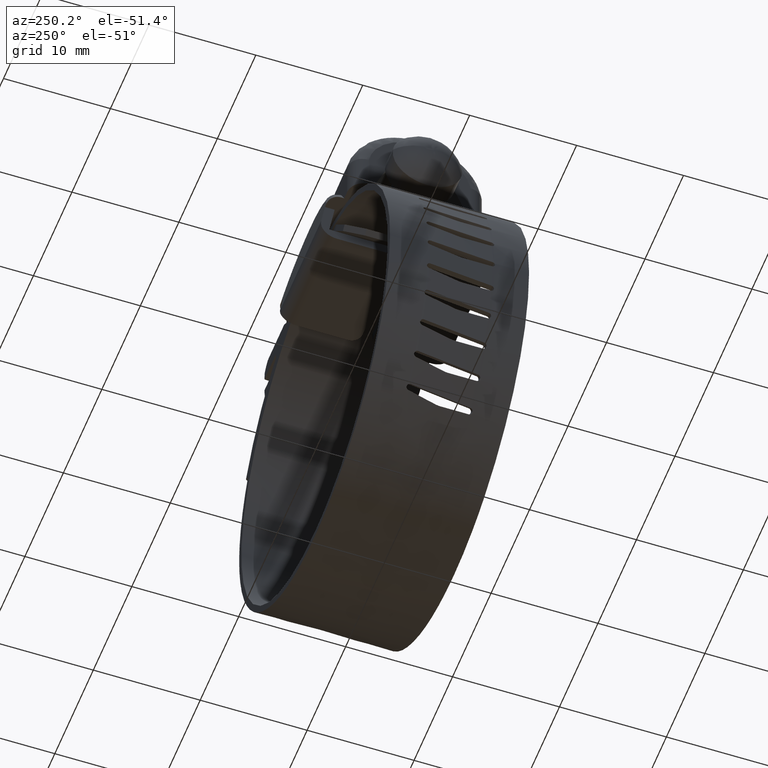
[diagram: clean part render]
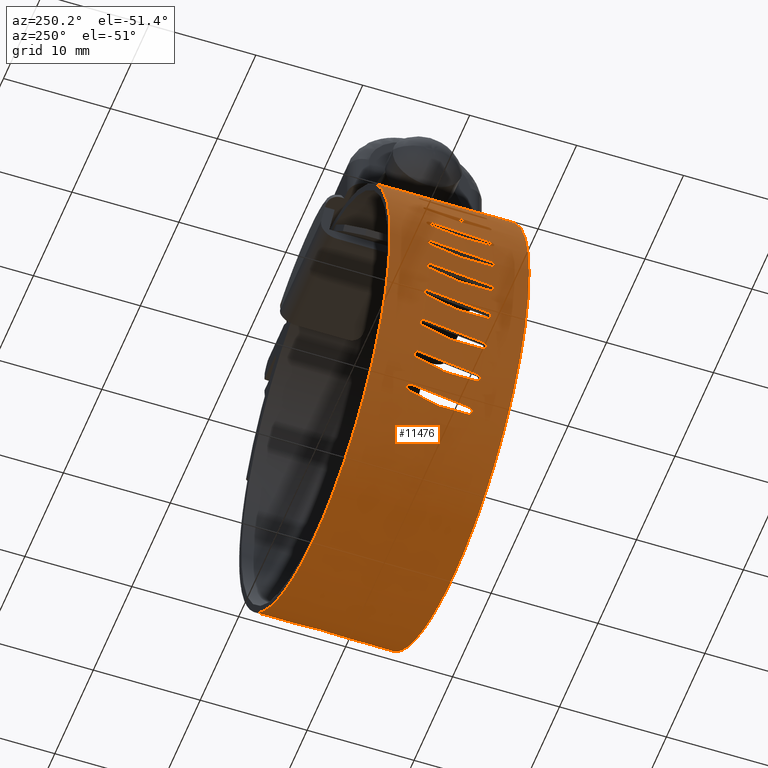
[diagram: same view with one face highlighted and labeled with its STEP entity id]
A machine part, auxiliary view. The second image highlights one B-rep face of the part: STEP entity #11476.
In plain terms, the highlighted face is a freeform B-spline surface patch.
Its self-contained STEP definition (entity closure, byte-faithful):
#5384=CARTESIAN_POINT('',(-14.348489579285481,2.620609246139980,-20.276185094325601));
#5385=VERTEX_POINT('',#5384);
#5386=CARTESIAN_POINT('',(-14.168654575181060,2.981424034894570,-20.466866296657951));
#5387=VERTEX_POINT('',#5386);
#5388=CARTESIAN_POINT('',(-14.348489579285481,2.620609246139980,-20.276185094325601));
#5389=CARTESIAN_POINT('',(-14.355584238388341,2.666710140467917,-20.269282357369889));
#5390=CARTESIAN_POINT('',(-14.354290196071760,2.758163587238288,-20.271567259671070));
#5391=CARTESIAN_POINT('',(-14.312830629217270,2.877454652797443,-20.315898264811889));
#5392=CARTESIAN_POINT('',(-14.246884683555550,2.954886687062797,-20.385257769378299));
#5393=CARTESIAN_POINT('',(-14.193909424226430,2.977612451370960,-20.440569651758381));
#5394=CARTESIAN_POINT('',(-14.168654575181060,2.981424034894570,-20.466866296657951));
#5395=B_SPLINE_CURVE_WITH_KNOTS('',3,(#5388,#5389,#5390,#5391,#5392,#5393,#5394),.UNSPECIFIED.,.F.,.U.,(4,1,1,1,4),(0.000000099247182,0.141412336252286,0.267110051199934,0.392811588082618,0.502798602907644),.UNSPECIFIED.);
#5396=EDGE_CURVE('',#5385,#5387,#5395,.T.);
#5398=CARTESIAN_POINT('',(-13.937608024552540,2.683075000000000,-20.704532738393102));
#5399=VERTEX_POINT('',#5398);
#5400=CARTESIAN_POINT('',(-14.168654575181060,2.981424034894570,-20.466866296657951));
#5401=CARTESIAN_POINT('',(-14.143434722520080,2.985285004596138,-20.493189964172728));
#5402=CARTESIAN_POINT('',(-14.088263831729540,2.978999517768661,-20.550621385786311));
#5403=CARTESIAN_POINT('',(-14.012004487758441,2.923185613685759,-20.629512136996372));
#5404=CARTESIAN_POINT('',(-13.953160899243830,2.819145162077352,-20.689748082936632));
#5405=CARTESIAN_POINT('',(-13.937804379880790,2.730223597880101,-20.704821527684860));
#5406=CARTESIAN_POINT('',(-13.937608024552540,2.683075000000000,-20.704532738393102));
#5407=B_SPLINE_CURVE_WITH_KNOTS('',3,(#5400,#5401,#5402,#5403,#5404,#5405,#5406),.UNSPECIFIED.,.F.,.U.,(4,1,1,1,4),(0.000000093846882,0.109985139957362,0.235684432419969,0.361379890035466,0.502789593728471),.UNSPECIFIED.);
#5408=EDGE_CURVE('',#5387,#5399,#5407,.T.);
#5456=CARTESIAN_POINT('',(-13.532554077748900,-0.014092279440430,-21.102504151834101));
#5457=VERTEX_POINT('',#5456);
#5469=CARTESIAN_POINT('',(-13.532554077748900,-0.014092279440430,-21.102504151834101));
#5470=CARTESIAN_POINT('',(-13.937608024552540,2.683075000000000,-20.704532738393102));
#5471=QUASI_UNIFORM_CURVE('',1,(#5469,#5470),.UNSPECIFIED.,.F.,.U.);
#5472=EDGE_CURVE('',#5457,#5399,#5471,.T.);
#5491=CARTESIAN_POINT('',(-13.509253662358500,-0.323107999999991,-21.124706513622801));
#5492=VERTEX_POINT('',#5491);
#5493=CARTESIAN_POINT('',(-13.532554077748900,-0.014092279440430,-21.102504151834101));
#5494=CARTESIAN_POINT('',(-13.517056025143670,-0.115608557057899,-21.117279952516171));
#5495=CARTESIAN_POINT('',(-13.509231294640140,-0.219357569592594,-21.124735937271328));
#5496=CARTESIAN_POINT('',(-13.509253662358500,-0.323107999999991,-21.124706513622801));
#5497=B_SPLINE_CURVE_WITH_KNOTS('',3,(#5493,#5494,#5495,#5496),.UNSPECIFIED.,.F.,.U.,(4,4),(8.589883E-010,0.311250493009255),.UNSPECIFIED.);
#5498=EDGE_CURVE('',#5457,#5492,#5497,.T.);
#5525=CARTESIAN_POINT('',(-13.509253662358660,-3.016925000000000,-21.124706513622950));
#5526=VERTEX_POINT('',#5525);
#5538=CARTESIAN_POINT('',(-13.509253662358660,-3.016925000000000,-21.124706513622950));
#5539=CARTESIAN_POINT('',(-13.509253662358500,-0.323107999999991,-21.124706513622801));
#5540=QUASI_UNIFORM_CURVE('',1,(#5538,#5539),.UNSPECIFIED.,.F.,.U.);
#5541=EDGE_CURVE('',#5526,#5492,#5540,.T.);
#5564=CARTESIAN_POINT('',(-13.725043319814400,-3.316924998061002,-20.916254495538670));
#5565=VERTEX_POINT('',#5564);
#5566=CARTESIAN_POINT('',(-13.509253662358660,-3.016925000000000,-21.124706513622950));
#5567=CARTESIAN_POINT('',(-13.509441607993280,-3.061118289797886,-21.124995990513799));
#5568=CARTESIAN_POINT('',(-13.523342959796810,-3.144508549101351,-21.112254219381899));
#5569=CARTESIAN_POINT('',(-13.572777254559410,-3.236952912564326,-21.064755179809762));
#5570=CARTESIAN_POINT('',(-13.640882506264150,-3.300353060905392,-20.998630348545220));
#5571=CARTESIAN_POINT('',(-13.693493739720649,-3.316994146856661,-20.947202292248811));
#5572=CARTESIAN_POINT('',(-13.725043319814400,-3.316924998061002,-20.916254495538670));
#5573=B_SPLINE_CURVE_WITH_KNOTS('',3,(#5566,#5567,#5568,#5569,#5570,#5571,#5572),.UNSPECIFIED.,.F.,.U.,(4,1,1,1,4),(0.000000107203762,0.132558738806580,0.250380530457015,0.338751420023355,0.471310059478423),.UNSPECIFIED.);
#5574=EDGE_CURVE('',#5526,#5565,#5573,.T.);
#5576=CARTESIAN_POINT('',(-13.937608024552540,-3.016925000000000,-20.704532738393102));
#5577=VERTEX_POINT('',#5576);
#5578=CARTESIAN_POINT('',(-13.725043319814400,-3.316924998061002,-20.916254495538670));
#5579=CARTESIAN_POINT('',(-13.760107015610410,-3.317026121096208,-20.881861520131469));
#5580=CARTESIAN_POINT('',(-13.815985449524151,-3.297197797871756,-20.826837640112188));
#5581=CARTESIAN_POINT('',(-13.883918692025951,-3.226253159430483,-20.759441109962079));
#5582=CARTESIAN_POINT('',(-13.927077514760869,-3.134716011519015,-20.716125075481710));
#5583=CARTESIAN_POINT('',(-13.937845670630839,-3.056200293773474,-20.704720734059379));
#5584=CARTESIAN_POINT('',(-13.937608024552540,-3.016925000000000,-20.704532738393102));
#5585=B_SPLINE_CURVE_WITH_KNOTS('',3,(#5578,#5579,#5580,#5581,#5582,#5583,#5584),.UNSPECIFIED.,.F.,.U.,(4,1,1,1,4),(0.000000135887161,0.147287312314571,0.235651506633034,0.353477223788220,0.471302953594371),.UNSPECIFIED.);
#5586=EDGE_CURVE('',#5565,#5577,#5585,.T.);
#5634=CARTESIAN_POINT('',(-14.348489579285481,2.620609246139980,-20.276185094325601));
#5635=CARTESIAN_POINT('',(-13.937608024552540,-3.016925000000000,-20.704532738393102));
#5636=QUASI_UNIFORM_CURVE('',1,(#5634,#5635),.UNSPECIFIED.,.F.,.U.);
#5637=EDGE_CURVE('',#5385,#5577,#5636,.T.);
#5660=CARTESIAN_POINT('',(-16.260577794960199,2.620609246139965,-17.867199247662750));
#5661=VERTEX_POINT('',#5660);
#5662=CARTESIAN_POINT('',(-16.112785970055491,2.981424034894569,-18.083665240639430));
#5663=VERTEX_POINT('',#5662);
#5664=CARTESIAN_POINT('',(-16.260577794960199,2.620609246139965,-17.867199247662750));
#5665=CARTESIAN_POINT('',(-16.266500922274648,2.666709216618376,-17.859277885843980));
#5666=CARTESIAN_POINT('',(-16.265590542855620,2.758164478123164,-17.861722348787730));
#5667=CARTESIAN_POINT('',(-16.231567751173209,2.877454299810429,-17.912005529803860));
#5668=CARTESIAN_POINT('',(-16.177287683129911,2.954886954146395,-17.990821942240380));
#5669=CARTESIAN_POINT('',(-16.133615632834221,2.977612081328330,-18.053742414533449));
#5670=CARTESIAN_POINT('',(-16.112785970055491,2.981424034894569,-18.083665240639430));
#5671=B_SPLINE_CURVE_WITH_KNOTS('',3,(#5664,#5665,#5666,#5667,#5668,#5669,#5670),.UNSPECIFIED.,.F.,.U.,(4,1,1,1,4),(0.000000099246795,0.141412336252041,0.267110051199803,0.392811588082516,0.502798602907520),.UNSPECIFIED.);
#5672=EDGE_CURVE('',#5661,#5663,#5671,.T.);
#5674=CARTESIAN_POINT('',(-15.921763208535801,2.683075000000000,-18.354549257639199));
#5675=VERTEX_POINT('',#5674);
#5676=CARTESIAN_POINT('',(-16.112785970055491,2.981424034894569,-18.083665240639430));
#5677=CARTESIAN_POINT('',(-16.091996527083019,2.985280099441846,-18.113607161260688));
#5678=CARTESIAN_POINT('',(-16.046485303152139,2.979006093312705,-18.178967791364350));
#5679=CARTESIAN_POINT('',(-15.983507193374360,2.923182721357107,-18.268815121774960));
#5680=CARTESIAN_POINT('',(-15.934816617870590,2.819144692761540,-18.337506646200211));
#5681=CARTESIAN_POINT('',(-15.921997955487170,2.730224342036393,-18.354810064176249));
#5682=CARTESIAN_POINT('',(-15.921763208535801,2.683075000000000,-18.354549257639199));
#5683=B_SPLINE_CURVE_WITH_KNOTS('',3,(#5676,#5677,#5678,#5679,#5680,#5681,#5682),.UNSPECIFIED.,.F.,.U.,(4,1,1,1,4),(0.000000093847696,0.109985139957900,0.235684432420310,0.361379890035738,0.502789593728716),.UNSPECIFIED.);
#5684=EDGE_CURVE('',#5663,#5675,#5683,.T.);
#5732=CARTESIAN_POINT('',(-15.583952593128149,-0.014092279440430,-18.810985380065450));
#5733=VERTEX_POINT('',#5732);
#5745=CARTESIAN_POINT('',(-15.583952593128149,-0.014092279440430,-18.810985380065450));
#5746=CARTESIAN_POINT('',(-15.921763208535801,2.683075000000000,-18.354549257639199));
#5747=QUASI_UNIFORM_CURVE('',1,(#5745,#5746),.UNSPECIFIED.,.F.,.U.);
#5748=EDGE_CURVE('',#5733,#5675,#5747,.T.);
#5767=CARTESIAN_POINT('',(-15.564412259105600,-0.323107999999991,-18.836559381954899));
#5768=VERTEX_POINT('',#5767);
#5769=CARTESIAN_POINT('',(-15.583952593128149,-0.014092279440430,-18.810985380065450));
#5770=CARTESIAN_POINT('',(-15.570955253559530,-0.115608439095564,-18.828005711107931));
#5771=CARTESIAN_POINT('',(-15.564396289549300,-0.219357976616056,-18.836589950936901));
#5772=CARTESIAN_POINT('',(-15.564412259105600,-0.323107999999991,-18.836559381954899));
#5773=B_SPLINE_CURVE_WITH_KNOTS('',3,(#5769,#5770,#5771,#5772),.UNSPECIFIED.,.F.,.U.,(4,4),(8.589734E-010,0.311250493009239),.UNSPECIFIED.);
#5774=EDGE_CURVE('',#5733,#5768,#5773,.T.);
#5801=CARTESIAN_POINT('',(-15.564412259105749,-3.016925000000000,-18.836559381955048));
#5802=VERTEX_POINT('',#5801);
#5814=CARTESIAN_POINT('',(-15.564412259105749,-3.016925000000000,-18.836559381955048));
#5815=CARTESIAN_POINT('',(-15.564412259105600,-0.323107999999991,-18.836559381954899));
#5816=QUASI_UNIFORM_CURVE('',1,(#5814,#5815),.UNSPECIFIED.,.F.,.U.);
#5817=EDGE_CURVE('',#5802,#5768,#5816,.T.);
#5840=CARTESIAN_POINT('',(-15.744936107860260,-3.316924998061002,-18.596916814494222));
#5841=VERTEX_POINT('',#5840);
#5842=CARTESIAN_POINT('',(-15.564412259105749,-3.016925000000000,-18.836559381955048));
#5843=CARTESIAN_POINT('',(-15.564639890970890,-3.061122466048347,-18.836820377015329));
#5844=CARTESIAN_POINT('',(-15.573632601335531,-3.124871003285723,-18.825509936530199));
#5845=CARTESIAN_POINT('',(-15.602826494269010,-3.205258835079590,-18.787165135369520));
#5846=CARTESIAN_POINT('',(-15.634494933338461,-3.257887807402534,-18.745125799032120));
#5847=CARTESIAN_POINT('',(-15.683479493560490,-3.304205016705107,-18.679648623737030));
#5848=CARTESIAN_POINT('',(-15.721542606518650,-3.316969704470276,-18.628471536261269));
#5849=CARTESIAN_POINT('',(-15.744936107860260,-3.316924998061002,-18.596916814494222));
#5850=B_SPLINE_CURVE_WITH_KNOTS('',3,(#5842,#5843,#5844,#5845,#5846,#5847,#5848,#5849),.UNSPECIFIED.,.F.,.U.,(4,1,1,1,1,4),(0.000000107203989,0.132558738806712,0.191476685409648,0.279833491075325,0.353482562916163,0.471310059478526),.UNSPECIFIED.);
#5851=EDGE_CURVE('',#5802,#5841,#5850,.T.);
#5853=CARTESIAN_POINT('',(-15.921763208535801,-3.016925000000000,-18.354549257639199));
#5854=VERTEX_POINT('',#5853);
#5855=CARTESIAN_POINT('',(-15.744936107860260,-3.316924998061002,-18.596916814494222));
#5856=CARTESIAN_POINT('',(-15.774179649244720,-3.317014946418835,-18.557473040883309));
#5857=CARTESIAN_POINT('',(-15.826620078695520,-3.294758932678479,-18.486453125500962));
#5858=CARTESIAN_POINT('',(-15.881430767405540,-3.218546198830713,-18.411542641396700));
#5859=CARTESIAN_POINT('',(-15.914269089959650,-3.124890678885363,-18.366045239078979));
#5860=CARTESIAN_POINT('',(-15.922029416199340,-3.056200994252043,-18.354694968296389));
#5861=CARTESIAN_POINT('',(-15.921763208535801,-3.016925000000000,-18.354549257639199));
#5862=B_SPLINE_CURVE_WITH_KNOTS('',3,(#5855,#5856,#5857,#5858,#5859,#5860,#5861),.UNSPECIFIED.,.F.,.U.,(4,1,1,1,4),(0.000000135887617,0.147287312314867,0.265102582354311,0.353477223788262,0.471302953594358),.UNSPECIFIED.);
#5863=EDGE_CURVE('',#5841,#5854,#5862,.T.);
#5911=CARTESIAN_POINT('',(-16.260577794960199,2.620609246139965,-17.867199247662750));
#5912=CARTESIAN_POINT('',(-15.921763208535801,-3.016925000000000,-18.354549257639199));
#5913=QUASI_UNIFORM_CURVE('',1,(#5911,#5912),.UNSPECIFIED.,.F.,.U.);
#5914=EDGE_CURVE('',#5661,#5854,#5913,.T.);
#5937=CARTESIAN_POINT('',(-17.772276619559300,2.620609246139990,-15.188755517126349));
#5938=VERTEX_POINT('',#5937);
#5939=CARTESIAN_POINT('',(-17.660167099075860,2.981424034894571,-15.425676189591769));
#5940=VERTEX_POINT('',#5939);
#5941=CARTESIAN_POINT('',(-17.772276619559300,2.620609246139990,-15.188755517126349));
#5942=CARTESIAN_POINT('',(-17.776890921247510,2.666709947052241,-15.179998368356889));
#5943=CARTESIAN_POINT('',(-17.776366434945480,2.758164772042244,-15.182571039296770));
#5944=CARTESIAN_POINT('',(-17.750634821188861,2.877451485882165,-15.237544498963050));
#5945=CARTESIAN_POINT('',(-17.709350096170621,2.954892762332591,-15.323887194931920));
#5946=CARTESIAN_POINT('',(-17.676059805836161,2.977608080951107,-15.392862287201320));
#5947=CARTESIAN_POINT('',(-17.660167099075860,2.981424034894571,-15.425676189591769));
#5948=B_SPLINE_CURVE_WITH_KNOTS('',3,(#5941,#5942,#5943,#5944,#5945,#5946,#5947),.UNSPECIFIED.,.F.,.U.,(4,1,1,1,4),(0.000000099247325,0.141412336252519,0.267110051200238,0.392811588082970,0.502798602908038),.UNSPECIFIED.);
#5949=EDGE_CURVE('',#5938,#5940,#5948,.T.);
#5951=CARTESIAN_POINT('',(-17.513871741022399,2.683075000000000,-15.723107718344099));
#5952=VERTEX_POINT('',#5951);
#5953=CARTESIAN_POINT('',(-17.660167099075860,2.981424034894571,-15.425676189591769));
#5954=CARTESIAN_POINT('',(-17.644316910396959,2.985284462336491,-15.458503069961120));
#5955=CARTESIAN_POINT('',(-17.609591612934231,2.979000360719692,-15.530176389259941));
#5956=CARTESIAN_POINT('',(-17.561445025719539,2.923185000712260,-15.628767690343309));
#5957=CARTESIAN_POINT('',(-17.524094392671419,2.819145636551067,-15.704241203694970));
#5958=CARTESIAN_POINT('',(-17.514147756209109,2.730222587111337,-15.723321618616501));
#5959=CARTESIAN_POINT('',(-17.513871741022399,2.683075000000000,-15.723107718344099));
#5960=B_SPLINE_CURVE_WITH_KNOTS('',3,(#5953,#5954,#5955,#5956,#5957,#5958,#5959),.UNSPECIFIED.,.F.,.U.,(4,1,1,1,4),(0.000000093847359,0.109985139957343,0.235684432419633,0.361379890034922,0.502789593727755),.UNSPECIFIED.);
#5961=EDGE_CURVE('',#5940,#5952,#5960,.T.);
#6009=CARTESIAN_POINT('',(-17.251622475491850,-0.014092279440430,-16.226769577597199));
#6010=VERTEX_POINT('',#6009);
#6022=CARTESIAN_POINT('',(-17.251622475491850,-0.014092279440430,-16.226769577597199));
#6023=CARTESIAN_POINT('',(-17.513871741022399,2.683075000000000,-15.723107718344099));
#6024=QUASI_UNIFORM_CURVE('',1,(#6022,#6023),.UNSPECIFIED.,.F.,.U.);
#6025=EDGE_CURVE('',#6010,#5952,#6024,.T.);
#6044=CARTESIAN_POINT('',(-17.236323370710899,-0.323107999999991,-16.255085502785349));
#6045=VERTEX_POINT('',#6044);
#6046=CARTESIAN_POINT('',(-17.251622475491850,-0.014092279440430,-16.226769577597199));
#6047=CARTESIAN_POINT('',(-17.241449132103821,-0.115608696818070,-16.245610977091939));
#6048=CARTESIAN_POINT('',(-17.236310941943170,-0.219357495046025,-16.255120858341339));
#6049=CARTESIAN_POINT('',(-17.236323370710899,-0.323107999999991,-16.255085502785349));
#6050=B_SPLINE_CURVE_WITH_KNOTS('',3,(#6046,#6047,#6048,#6049),.UNSPECIFIED.,.F.,.U.,(4,4),(8.589808E-010,0.311250493009246),.UNSPECIFIED.);
#6051=EDGE_CURVE('',#6010,#6045,#6050,.T.);
#6078=CARTESIAN_POINT('',(-17.236323370710998,-3.016925000000000,-16.255085502785452));
#6079=VERTEX_POINT('',#6078);
#6091=CARTESIAN_POINT('',(-17.236323370710998,-3.016925000000000,-16.255085502785452));
#6092=CARTESIAN_POINT('',(-17.236323370710899,-0.323107999999991,-16.255085502785349));
#6093=QUASI_UNIFORM_CURVE('',1,(#6091,#6092),.UNSPECIFIED.,.F.,.U.);
#6094=EDGE_CURVE('',#6079,#6045,#6093,.T.);
#6117=CARTESIAN_POINT('',(-17.377136314483451,-3.316924998061002,-15.990153181287230));
#6118=VERTEX_POINT('',#6117);
#6119=CARTESIAN_POINT('',(-17.236323370710998,-3.016925000000000,-16.255085502785452));
#6120=CARTESIAN_POINT('',(-17.236589040547379,-3.061122905037520,-16.255307659598490));
#6121=CARTESIAN_POINT('',(-17.243701607135719,-3.124869379066329,-16.242729830039220));
#6122=CARTESIAN_POINT('',(-17.266537721912659,-3.205260614642742,-16.200290059138510));
#6123=CARTESIAN_POINT('',(-17.289593053638509,-3.254374544907058,-16.156912551738131));
#6124=CARTESIAN_POINT('',(-17.327105582876889,-3.302562710327649,-16.085809571948040));
#6125=CARTESIAN_POINT('',(-17.356692164065329,-3.316999501924873,-16.029339777744671));
#6126=CARTESIAN_POINT('',(-17.377136314483451,-3.316924998061002,-15.990153181287230));
#6127=B_SPLINE_CURVE_WITH_KNOTS('',3,(#6119,#6120,#6121,#6122,#6123,#6124,#6125,#6126),.UNSPECIFIED.,.F.,.U.,(4,1,1,1,1,4),(0.000000107203958,0.132558738806748,0.191476685409726,0.279833491075424,0.338751420023465,0.471310059478489),.UNSPECIFIED.);
#6128=EDGE_CURVE('',#6079,#6118,#6127,.T.);
#6130=CARTESIAN_POINT('',(-17.513871741022399,-3.016925000000000,-15.723107718344099));
#6131=VERTEX_POINT('',#6130);
#6132=CARTESIAN_POINT('',(-17.377136314483451,-3.316924998061002,-15.990153181287230));
#6133=CARTESIAN_POINT('',(-17.390759238306490,-3.316934053283753,-15.964042232550840));
#6134=CARTESIAN_POINT('',(-17.422484197767460,-3.306752306082396,-15.903066425511421));
#6135=CARTESIAN_POINT('',(-17.462989833407491,-3.259592928954650,-15.824648781217981));
#6136=CARTESIAN_POINT('',(-17.493314384473010,-3.186022728858168,-15.765308217612059));
#6137=CARTESIAN_POINT('',(-17.510427832577172,-3.105278194077235,-15.731170696662630));
#6138=CARTESIAN_POINT('',(-17.514077563081990,-3.046377689352810,-15.723200588397260));
#6139=CARTESIAN_POINT('',(-17.513871741022399,-3.016925000000000,-15.723107718344099));
#6140=B_SPLINE_CURVE_WITH_KNOTS('',3,(#6132,#6133,#6134,#6135,#6136,#6137,#6138,#6139),.UNSPECIFIED.,.F.,.U.,(4,1,1,1,1,4),(0.000000135887595,0.088364379081746,0.206200548099017,0.294557066997968,0.382938696450294,0.471302953594481),.UNSPECIFIED.);
#6141=EDGE_CURVE('',#6118,#6131,#6140,.T.);
#6189=CARTESIAN_POINT('',(-17.772276619559300,2.620609246139990,-15.188755517126349));
#6190=CARTESIAN_POINT('',(-17.513871741022399,-3.016925000000000,-15.723107718344099));
#6191=QUASI_UNIFORM_CURVE('',1,(#6189,#6190),.UNSPECIFIED.,.F.,.U.);
#6192=EDGE_CURVE('',#5938,#6131,#6191,.T.);
#6215=CARTESIAN_POINT('',(-18.846363010979999,2.620609246139990,-12.306806076607300));
#6216=VERTEX_POINT('',#6215);
#6217=CARTESIAN_POINT('',(-18.772696303383238,2.981424034894574,-12.558347655309751));
#6218=VERTEX_POINT('',#6217);
#6219=CARTESIAN_POINT('',(-18.846363010979999,2.620609246139990,-12.306806076607300));
#6220=CARTESIAN_POINT('',(-18.849548737102801,2.666709428053853,-12.297440975888151));
#6221=CARTESIAN_POINT('',(-18.849437613504211,2.758165508955603,-12.300049387660501));
#6222=CARTESIAN_POINT('',(-18.832618765244771,2.877453826961280,-12.358383827115571));
#6223=CARTESIAN_POINT('',(-18.805351070022532,2.954886864900605,-12.450115812379670));
#6224=CARTESIAN_POINT('',(-18.783259755604330,2.977612271281693,-12.523452880313080));
#6225=CARTESIAN_POINT('',(-18.772696303383238,2.981424034894574,-12.558347655309751));
#6226=B_SPLINE_CURVE_WITH_KNOTS('',3,(#6219,#6220,#6221,#6222,#6223,#6224,#6225),.UNSPECIFIED.,.F.,.U.,(4,1,1,1,4),(0.000000099247684,0.141412336252675,0.267110051200210,0.392811588082782,0.502798602907783),.UNSPECIFIED.);
#6227=EDGE_CURVE('',#6216,#6218,#6226,.T.);
#6229=CARTESIAN_POINT('',(-18.674730626036851,2.683075000000000,-12.875002944459100));
#6230=VERTEX_POINT('',#6229);
#6231=CARTESIAN_POINT('',(-18.772696303383238,2.981424034894574,-12.558347655309751));
#6232=CARTESIAN_POINT('',(-18.759167502158519,2.986449126091897,-12.603234614384080));
#6233=CARTESIAN_POINT('',(-18.735943080779229,2.975757333571207,-12.679806683640860));
#6234=CARTESIAN_POINT('',(-18.704955297213129,2.914825738066527,-12.780806236197019));
#6235=CARTESIAN_POINT('',(-18.681877842728710,2.819158851505912,-12.854763921704929));
#6236=CARTESIAN_POINT('',(-18.675034682036920,2.730222135318402,-12.875177712787419));
#6237=CARTESIAN_POINT('',(-18.674730626036851,2.683075000000000,-12.875002944459100));
#6238=B_SPLINE_CURVE_WITH_KNOTS('',3,(#6231,#6232,#6233,#6234,#6235,#6236,#6237),.UNSPECIFIED.,.F.,.U.,(4,1,1,1,4),(0.000000093847580,0.141409799537332,0.235684432419996,0.361379890035314,0.502789593728175),.UNSPECIFIED.);
#6239=EDGE_CURVE('',#6218,#6230,#6238,.T.);
#6287=CARTESIAN_POINT('',(-18.494500157656301,-0.014092279440430,-13.413488714006320));
#6288=VERTEX_POINT('',#6287);
#6300=CARTESIAN_POINT('',(-18.494500157656301,-0.014092279440430,-13.413488714006320));
#6301=CARTESIAN_POINT('',(-18.674730626036851,2.683075000000000,-12.875002944459100));
#6302=QUASI_UNIFORM_CURVE('',1,(#6300,#6301),.UNSPECIFIED.,.F.,.U.);
#6303=EDGE_CURVE('',#6288,#6230,#6302,.T.);
#6322=CARTESIAN_POINT('',(-18.483818996851351,-0.323107999999991,-13.443849330439759));
#6323=VERTEX_POINT('',#6322);
#6324=CARTESIAN_POINT('',(-18.494500157656301,-0.014092279440430,-13.413488714006320));
#6325=CARTESIAN_POINT('',(-18.487398349771329,-0.115608411375083,-13.433692907672940));
#6326=CARTESIAN_POINT('',(-18.483813406445769,-0.219357915358811,-13.443882907593080));
#6327=CARTESIAN_POINT('',(-18.483818996851351,-0.323107999999991,-13.443849330439759));
#6328=B_SPLINE_CURVE_WITH_KNOTS('',3,(#6324,#6325,#6326,#6327),.UNSPECIFIED.,.F.,.U.,(4,4),(8.589824E-010,0.311250493009243),.UNSPECIFIED.);
#6329=EDGE_CURVE('',#6288,#6323,#6328,.T.);
#6356=CARTESIAN_POINT('',(-18.483818996851600,-3.016925000000000,-13.443849330439839));
#6357=VERTEX_POINT('',#6356);
#6369=CARTESIAN_POINT('',(-18.483818996851600,-3.016925000000000,-13.443849330439839));
#6370=CARTESIAN_POINT('',(-18.483818996851351,-0.323107999999991,-13.443849330439759));
#6371=QUASI_UNIFORM_CURVE('',1,(#6369,#6370),.UNSPECIFIED.,.F.,.U.);
#6372=EDGE_CURVE('',#6357,#6323,#6371,.T.);
#6395=CARTESIAN_POINT('',(-18.581453753635120,-3.316924998061001,-13.160150767919520));
#6396=VERTEX_POINT('',#6395);
#6397=CARTESIAN_POINT('',(-18.483818996851600,-3.016925000000000,-13.443849330439839));
#6398=CARTESIAN_POINT('',(-18.484117801954898,-3.061118732083218,-13.444022166134070));
#6399=CARTESIAN_POINT('',(-18.490719818769438,-3.144504719173476,-13.426356595843080));
#6400=CARTESIAN_POINT('',(-18.514177427772001,-3.240985849881761,-13.358782593887939));
#6401=CARTESIAN_POINT('',(-18.545432544439549,-3.302257779179978,-13.267127864418530));
#6402=CARTESIAN_POINT('',(-18.568956749545642,-3.316965448024241,-13.197388213255049));
#6403=CARTESIAN_POINT('',(-18.581453753635120,-3.316924998061001,-13.160150767919520));
#6404=B_SPLINE_CURVE_WITH_KNOTS('',3,(#6397,#6398,#6399,#6400,#6401,#6402,#6403),.UNSPECIFIED.,.F.,.U.,(4,1,1,1,4),(0.000000107203644,0.132558738806438,0.250380530456903,0.353482562916058,0.471310059478443),.UNSPECIFIED.);
#6405=EDGE_CURVE('',#6357,#6396,#6404,.T.);
#6407=CARTESIAN_POINT('',(-18.674730626036851,-3.016925000000000,-12.875002944459100));
#6408=VERTEX_POINT('',#6407);
#6409=CARTESIAN_POINT('',(-18.581453753635120,-3.316924998061001,-13.160150767919520));
#6410=CARTESIAN_POINT('',(-18.597077077107731,-3.317014552155388,-13.113601168642040));
#6411=CARTESIAN_POINT('',(-18.625004728991119,-3.294759092919021,-13.029851647275271));
#6412=CARTESIAN_POINT('',(-18.653984110363819,-3.218546260498338,-12.941670311101930));
#6413=CARTESIAN_POINT('',(-18.671155755745261,-3.124890493871849,-12.888252059049240));
#6414=CARTESIAN_POINT('',(-18.675028825143588,-3.056201060920059,-12.875059281795510));
#6415=CARTESIAN_POINT('',(-18.674730626036851,-3.016925000000000,-12.875002944459100));
#6416=B_SPLINE_CURVE_WITH_KNOTS('',3,(#6409,#6410,#6411,#6412,#6413,#6414,#6415),.UNSPECIFIED.,.F.,.U.,(4,1,1,1,4),(0.000000135887657,0.147287312314883,0.265102582354315,0.353477223788304,0.471302953594424),.UNSPECIFIED.);
#6417=EDGE_CURVE('',#6396,#6408,#6416,.T.);
#6464=CARTESIAN_POINT('',(-18.846363010979999,2.620609246139990,-12.306806076607300));
#6465=CARTESIAN_POINT('',(-18.674730626036851,-3.016925000000000,-12.875002944459100));
#6466=QUASI_UNIFORM_CURVE('',1,(#6464,#6465),.UNSPECIFIED.,.F.,.U.);
#6467=EDGE_CURVE('',#6216,#6408,#6466,.T.);
#6490=CARTESIAN_POINT('',(-19.456389397578000,2.620609246139990,-9.292314085973011));
#6491=VERTEX_POINT('',#6490);
#6492=CARTESIAN_POINT('',(-19.422979421694070,2.981424034894570,-9.552282782426921));
#6493=VERTEX_POINT('',#6492);
#6494=CARTESIAN_POINT('',(-19.456389397578000,2.620609246139990,-9.292314085973011));
#6495=CARTESIAN_POINT('',(-19.458070726328518,2.666710767439468,-9.282567089648790));
#6496=CARTESIAN_POINT('',(-19.458369150338338,2.758163537937997,-9.285159631762697));
#6497=CARTESIAN_POINT('',(-19.450883120009099,2.877454627350854,-9.345405385247048));
#6498=CARTESIAN_POINT('',(-19.438300512884791,2.954886904644265,-9.440278378032346));
#6499=CARTESIAN_POINT('',(-19.427954398418350,2.977612209966617,-9.516162792345014));
#6500=CARTESIAN_POINT('',(-19.422979421694070,2.981424034894570,-9.552282782426921));
#6501=B_SPLINE_CURVE_WITH_KNOTS('',3,(#6494,#6495,#6496,#6497,#6498,#6499,#6500),.UNSPECIFIED.,.F.,.U.,(4,1,1,1,4),(0.000000099246941,0.141412336252242,0.267110051200081,0.392811588082922,0.502798602908060),.UNSPECIFIED.);
#6502=EDGE_CURVE('',#6491,#6493,#6501,.T.);
#6504=CARTESIAN_POINT('',(-19.375755665160899,2.683075000000000,-9.880364727835140));
#6505=VERTEX_POINT('',#6504);
#6506=CARTESIAN_POINT('',(-19.422979421694070,2.981424034894570,-9.552282782426921));
#6507=CARTESIAN_POINT('',(-19.418048919342390,2.985284917982045,-9.588402030111473));
#6508=CARTESIAN_POINT('',(-19.407171871590901,2.978999806898942,-9.667295154638332));
#6509=CARTESIAN_POINT('',(-19.391847739615532,2.923185136903156,-9.775942074289583));
#6510=CARTESIAN_POINT('',(-19.379647955923019,2.819146339187554,-9.859262343078749));
#6511=CARTESIAN_POINT('',(-19.376084176909210,2.730222043088302,-9.880483514947411));
#6512=CARTESIAN_POINT('',(-19.375755665160899,2.683075000000000,-9.880364727835140));
#6513=B_SPLINE_CURVE_WITH_KNOTS('',3,(#6506,#6507,#6508,#6509,#6510,#6511,#6512),.UNSPECIFIED.,.F.,.U.,(4,1,1,1,4),(0.000000093847312,0.109985139957355,0.235684432419679,0.361379890034958,0.502789593727749),.UNSPECIFIED.);
#6514=EDGE_CURVE('',#6493,#6505,#6513,.T.);
#6562=CARTESIAN_POINT('',(-19.281981866212000,-0.014092279440430,-10.440415100898321));
#6563=VERTEX_POINT('',#6562);
#6575=CARTESIAN_POINT('',(-19.281981866212000,-0.014092279440430,-10.440415100898321));
#6576=CARTESIAN_POINT('',(-19.375755665160899,2.683075000000000,-9.880364727835140));
#6577=QUASI_UNIFORM_CURVE('',1,(#6575,#6576),.UNSPECIFIED.,.F.,.U.);
#6578=EDGE_CURVE('',#6563,#6505,#6577,.T.);
#6597=CARTESIAN_POINT('',(-19.276181655011399,-0.323107999999991,-10.472072829439499));
#6598=VERTEX_POINT('',#6597);
#6599=CARTESIAN_POINT('',(-19.281981866212000,-0.014092279440430,-10.440415100898321));
#6600=CARTESIAN_POINT('',(-19.278128753963902,-0.115608711034249,-10.461478074672030));
#6601=CARTESIAN_POINT('',(-19.276180760086170,-0.219357487926718,-10.472110294903850));
#6602=CARTESIAN_POINT('',(-19.276181655011399,-0.323107999999991,-10.472072829439499));
#6603=B_SPLINE_CURVE_WITH_KNOTS('',3,(#6599,#6600,#6601,#6602),.UNSPECIFIED.,.F.,.U.,(4,4),(8.589708E-010,0.311250493009245),.UNSPECIFIED.);
#6604=EDGE_CURVE('',#6563,#6598,#6603,.T.);
#6631=CARTESIAN_POINT('',(-19.276181655011349,-3.016925000000000,-10.472072829439499));
#6632=VERTEX_POINT('',#6631);
#6644=CARTESIAN_POINT('',(-19.276181655011349,-3.016925000000000,-10.472072829439499));
#6645=CARTESIAN_POINT('',(-19.276181655011399,-0.323107999999991,-10.472072829439499));
#6646=QUASI_UNIFORM_CURVE('',1,(#6644,#6645),.UNSPECIFIED.,.F.,.U.);
#6647=EDGE_CURVE('',#6632,#6598,#6646,.T.);
#6670=CARTESIAN_POINT('',(-19.328234133062800,-3.316924998061001,-10.176593626048311));
#6671=VERTEX_POINT('',#6670);
#6672=CARTESIAN_POINT('',(-19.276181655011349,-3.016925000000000,-10.472072829439499));
#6673=CARTESIAN_POINT('',(-19.276503849986121,-3.061118159320873,-10.472196582009181));
#6674=CARTESIAN_POINT('',(-19.280260850236321,-3.144508386068638,-10.453717287956080));
#6675=CARTESIAN_POINT('',(-19.292334790905361,-3.236953415467920,-10.386233092149050));
#6676=CARTESIAN_POINT('',(-19.308565831178139,-3.300352228489275,-10.292706042817439));
#6677=CARTESIAN_POINT('',(-19.320900718543371,-3.316994485829932,-10.220174876618040));
#6678=CARTESIAN_POINT('',(-19.328234133062800,-3.316924998061001,-10.176593626048311));
#6679=B_SPLINE_CURVE_WITH_KNOTS('',3,(#6672,#6673,#6674,#6675,#6676,#6677,#6678),.UNSPECIFIED.,.F.,.U.,(4,1,1,1,4),(0.000000107203950,0.132558738806649,0.250380530456967,0.338751420023194,0.471310059478189),.UNSPECIFIED.);
#6680=EDGE_CURVE('',#6632,#6671,#6679,.T.);
#6682=CARTESIAN_POINT('',(-19.375755665160899,-3.016925000000000,-9.880364727835140));
#6683=VERTEX_POINT('',#6682);
#6684=CARTESIAN_POINT('',(-19.328234133062800,-3.316924998061001,-10.176593626048311));
#6685=CARTESIAN_POINT('',(-19.336383152595491,-3.317014623656181,-10.128173066471041));
#6686=CARTESIAN_POINT('',(-19.350865630877550,-3.294758885836272,-10.041085936786169));
#6687=CARTESIAN_POINT('',(-19.365693672527410,-3.218546531530329,-9.949456641588508));
#6688=CARTESIAN_POINT('',(-19.374297376719639,-3.124889971842668,-9.894010223195654));
#6689=CARTESIAN_POINT('',(-19.376059084518459,-3.056201828871976,-9.880373292036113));
#6690=CARTESIAN_POINT('',(-19.375755665160899,-3.016925000000000,-9.880364727835140));
#6691=B_SPLINE_CURVE_WITH_KNOTS('',3,(#6684,#6685,#6686,#6687,#6688,#6689,#6690),.UNSPECIFIED.,.F.,.U.,(4,1,1,1,4),(0.000000135887413,0.147287312314747,0.265102582354362,0.353477223788455,0.471302953594694),.UNSPECIFIED.);
#6692=EDGE_CURVE('',#6671,#6683,#6691,.T.);
#6739=CARTESIAN_POINT('',(-19.456389397578000,2.620609246139990,-9.292314085973011));
#6740=CARTESIAN_POINT('',(-19.375755665160899,-3.016925000000000,-9.880364727835140));
#6741=QUASI_UNIFORM_CURVE('',1,(#6739,#6740),.UNSPECIFIED.,.F.,.U.);
#6742=EDGE_CURVE('',#6491,#6683,#6741,.T.);
#6765=CARTESIAN_POINT('',(-8.264755517126259,2.620609246139990,10.848276619559019));
#6766=VERTEX_POINT('',#6765);
#6767=CARTESIAN_POINT('',(-8.501676189591796,2.981424034894570,10.736167099075841));
#6768=VERTEX_POINT('',#6767);
#6769=CARTESIAN_POINT('',(-8.264755517126259,2.620609246139990,10.848276619559019));
#6770=CARTESIAN_POINT('',(-8.256004192124221,2.666709615229145,10.852888092643809));
#6771=CARTESIAN_POINT('',(-8.258563115158722,2.758165153239370,10.852370283142101));
#6772=CARTESIAN_POINT('',(-8.313547135316915,2.877454041306152,10.826633562127910));
#6773=CARTESIAN_POINT('',(-8.399887118331186,2.954886788561819,10.785350086056329));
#6774=CARTESIAN_POINT('',(-8.468862379402081,2.977612433094089,10.752059795544669));
#6775=CARTESIAN_POINT('',(-8.501676189591796,2.981424034894570,10.736167099075841));
#6776=B_SPLINE_CURVE_WITH_KNOTS('',3,(#6769,#6770,#6771,#6772,#6773,#6774,#6775),.UNSPECIFIED.,.F.,.U.,(4,1,1,1,4),(0.000000099247035,0.141412336252329,0.267110051200129,0.392811588082926,0.502798602908034),.UNSPECIFIED.);
#6777=EDGE_CURVE('',#6766,#6768,#6776,.T.);
#6779=CARTESIAN_POINT('',(-8.799107718344020,2.683075000000000,10.589871741022121));
#6780=VERTEX_POINT('',#6779);
#6781=CARTESIAN_POINT('',(-8.501676189591796,2.981424034894570,10.736167099075841));
#6782=CARTESIAN_POINT('',(-8.534503078218467,2.985284467560091,10.720316906444181));
#6783=CARTESIAN_POINT('',(-8.606176345885604,2.979000310649087,10.685591633515109));
#6784=CARTESIAN_POINT('',(-8.704767690026806,2.923185142116212,10.637445027010690));
#6785=CARTESIAN_POINT('',(-8.780241385611520,2.819145286743754,10.600094301846390));
#6786=CARTESIAN_POINT('',(-8.799321490622631,2.730223655575760,10.590147826730950));
#6787=CARTESIAN_POINT('',(-8.799107718344020,2.683075000000000,10.589871741022121));
#6788=B_SPLINE_CURVE_WITH_KNOTS('',3,(#6781,#6782,#6783,#6784,#6785,#6786,#6787),.UNSPECIFIED.,.F.,.U.,(4,1,1,1,4),(0.000000093847392,0.109985139957407,0.235684432419688,0.361379890034964,0.502789593727772),.UNSPECIFIED.);
#6789=EDGE_CURVE('',#6768,#6780,#6788,.T.);
#6837=CARTESIAN_POINT('',(-9.302769577597291,-0.014092279440430,10.327622475491900));
#6838=VERTEX_POINT('',#6837);
#6850=CARTESIAN_POINT('',(-9.302769577597291,-0.014092279440430,10.327622475491900));
#6851=CARTESIAN_POINT('',(-8.799107718344020,2.683075000000000,10.589871741022121));
#6852=QUASI_UNIFORM_CURVE('',1,(#6850,#6851),.UNSPECIFIED.,.F.,.U.);
#6853=EDGE_CURVE('',#6838,#6780,#6852,.T.);
#6872=CARTESIAN_POINT('',(-9.331085502785250,-0.323107999999991,10.312323370710660));
#6873=VERTEX_POINT('',#6872);
#6874=CARTESIAN_POINT('',(-9.302769577597291,-0.014092279440430,10.327622475491900));
#6875=CARTESIAN_POINT('',(-9.321613591983290,-0.115608439095565,10.317447721122409));
#6876=CARTESIAN_POINT('',(-9.331118193601322,-0.219357976616055,10.312312379808469));
#6877=CARTESIAN_POINT('',(-9.331085502785250,-0.323107999999991,10.312323370710660));
#6878=B_SPLINE_CURVE_WITH_KNOTS('',3,(#6874,#6875,#6876,#6877),.UNSPECIFIED.,.F.,.U.,(4,4),(8.589703E-010,0.311250493009243),.UNSPECIFIED.);
#6879=EDGE_CURVE('',#6838,#6873,#6878,.T.);
#6906=CARTESIAN_POINT('',(-9.331085502785442,-3.016925000000000,10.312323370710960));
#6907=VERTEX_POINT('',#6906);
#6919=CARTESIAN_POINT('',(-9.331085502785442,-3.016925000000000,10.312323370710960));
#6920=CARTESIAN_POINT('',(-9.331085502785250,-0.323107999999991,10.312323370710660));
#6921=QUASI_UNIFORM_CURVE('',1,(#6919,#6920),.UNSPECIFIED.,.F.,.U.);
#6922=EDGE_CURVE('',#6907,#6873,#6921,.T.);
#6945=CARTESIAN_POINT('',(-9.066153181287255,-3.316924998061002,10.453136314483430));
#6946=VERTEX_POINT('',#6945);
#6947=CARTESIAN_POINT('',(-9.331085502785442,-3.016925000000000,10.312323370710960));
#6948=CARTESIAN_POINT('',(-9.331259780791456,-3.056202510393332,10.312571540881329));
#6949=CARTESIAN_POINT('',(-9.318478409466110,-3.129798942976146,10.319875339204740));
#6950=CARTESIAN_POINT('',(-9.262147776641619,-3.230852276609364,10.350137105893550));
#6951=CARTESIAN_POINT('',(-9.174902564124395,-3.300347294399833,10.396255459430760));
#6952=CARTESIAN_POINT('',(-9.100970749388974,-3.316955080564352,10.434971230454179));
#6953=CARTESIAN_POINT('',(-9.066153181287255,-3.316924998061002,10.453136314483430));
#6954=B_SPLINE_CURVE_WITH_KNOTS('',3,(#6947,#6948,#6949,#6950,#6951,#6952,#6953),.UNSPECIFIED.,.F.,.U.,(4,1,1,1,4),(0.000000107203643,0.117827595287853,0.220929660649129,0.353482562916117,0.471310059478471),.UNSPECIFIED.);
#6955=EDGE_CURVE('',#6907,#6946,#6954,.T.);
#6957=CARTESIAN_POINT('',(-8.799107718344020,-3.016925000000000,10.589871741022121));
#6958=VERTEX_POINT('',#6957);
#6959=CARTESIAN_POINT('',(-9.066153181287255,-3.316924998061002,10.453136314483430));
#6960=CARTESIAN_POINT('',(-9.022621187327578,-3.317016858621335,10.475849022015080));
#6961=CARTESIAN_POINT('',(-8.944270257198680,-3.294752836407839,10.516534780988900));
#6962=CARTESIAN_POINT('',(-8.868595424880843,-3.224902571796116,10.555413513252169));
#6963=CARTESIAN_POINT('',(-8.814819527179692,-3.134647964368823,10.582690773198051));
#6964=CARTESIAN_POINT('',(-8.799194993426568,-3.066043088329478,10.590250260218070));
#6965=CARTESIAN_POINT('',(-8.799107718344020,-3.016925000000000,10.589871741022121));
#6966=B_SPLINE_CURVE_WITH_KNOTS('',3,(#6959,#6960,#6961,#6962,#6963,#6964,#6965),.UNSPECIFIED.,.F.,.U.,(4,1,1,1,4),(0.000000135887527,0.147287312314773,0.265102582354278,0.324015763584832,0.471302953594455),.UNSPECIFIED.);
#6967=EDGE_CURVE('',#6946,#6958,#6966,.T.);
#7014=CARTESIAN_POINT('',(-8.264755517126259,2.620609246139990,10.848276619559019));
#7015=CARTESIAN_POINT('',(-8.799107718344020,-3.016925000000000,10.589871741022121));
#7016=QUASI_UNIFORM_CURVE('',1,(#7014,#7015),.UNSPECIFIED.,.F.,.U.);
#7017=EDGE_CURVE('',#6766,#6958,#7016,.T.);
#7040=CARTESIAN_POINT('',(-10.943199247662720,2.620609246139965,9.336577794960141));
#7041=VERTEX_POINT('',#7040);
#7042=CARTESIAN_POINT('',(-11.159665240639489,2.981424034894579,9.188785970055447));
#7043=VERTEX_POINT('',#7042);
#7044=CARTESIAN_POINT('',(-10.943199247662720,2.620609246139965,9.336577794960141));
#7045=CARTESIAN_POINT('',(-10.935277943873761,2.666710571958244,9.342500893581134));
#7046=CARTESIAN_POINT('',(-10.937723167561840,2.758164814820730,9.341589974913900));
#7047=CARTESIAN_POINT('',(-10.988004688962310,2.877451347290039,9.307568311792055));
#7048=CARTESIAN_POINT('',(-11.066823202901960,2.954892854250298,9.253286855393315));
#7049=CARTESIAN_POINT('',(-11.129741400925790,2.977607997346031,9.209616304086389));
#7050=CARTESIAN_POINT('',(-11.159665240639489,2.981424034894579,9.188785970055447));
#7051=B_SPLINE_CURVE_WITH_KNOTS('',3,(#7044,#7045,#7046,#7047,#7048,#7049,#7050),.UNSPECIFIED.,.F.,.U.,(4,1,1,1,4),(0.000000099247015,0.141412336252155,0.267110051199839,0.392811588082549,0.502798602907578),.UNSPECIFIED.);
#7052=EDGE_CURVE('',#7041,#7043,#7051,.T.);
#7054=CARTESIAN_POINT('',(-11.430549257639139,2.683075000000000,8.997763208535739));
#7055=VERTEX_POINT('',#7054);
#7056=CARTESIAN_POINT('',(-11.159665240639489,2.981424034894579,9.188785970055447));
#7057=CARTESIAN_POINT('',(-11.189609297480141,2.985284913219576,9.167995083908185));
#7058=CARTESIAN_POINT('',(-11.254965198070581,2.978999663481628,9.122487049941942));
#7059=CARTESIAN_POINT('',(-11.344816531589720,2.923186177655019,9.059506243405767));
#7060=CARTESIAN_POINT('',(-11.413506091690660,2.819143599286377,9.010816993860253));
#7061=CARTESIAN_POINT('',(-11.430810075725139,2.730224331111915,8.997997947358870));
#7062=CARTESIAN_POINT('',(-11.430549257639139,2.683075000000000,8.997763208535739));
#7063=B_SPLINE_CURVE_WITH_KNOTS('',3,(#7056,#7057,#7058,#7059,#7060,#7061,#7062),.UNSPECIFIED.,.F.,.U.,(4,1,1,1,4),(0.000000093847376,0.109985139957625,0.235684432420107,0.361379890035599,0.502789593728631),.UNSPECIFIED.);
#7064=EDGE_CURVE('',#7043,#7055,#7063,.T.);
#7112=CARTESIAN_POINT('',(-11.886985380065401,-0.014092279440430,8.659952593128240));
#7113=VERTEX_POINT('',#7112);
#7125=CARTESIAN_POINT('',(-11.886985380065401,-0.014092279440430,8.659952593128240));
#7126=CARTESIAN_POINT('',(-11.430549257639139,2.683075000000000,8.997763208535739));
#7127=QUASI_UNIFORM_CURVE('',1,(#7125,#7126),.UNSPECIFIED.,.F.,.U.);
#7128=EDGE_CURVE('',#7113,#7055,#7127,.T.);
#7147=CARTESIAN_POINT('',(-11.912559381954880,-0.323107999999991,8.640412259105549));
#7148=VERTEX_POINT('',#7147);
#7149=CARTESIAN_POINT('',(-11.886985380065401,-0.014092279440430,8.659952593128240));
#7150=CARTESIAN_POINT('',(-11.904003344207579,-0.115608645594744,8.646957059993824));
#7151=CARTESIAN_POINT('',(-11.912592355227959,-0.219357508734757,8.640394454596375));
#7152=CARTESIAN_POINT('',(-11.912559381954880,-0.323107999999991,8.640412259105549));
#7153=B_SPLINE_CURVE_WITH_KNOTS('',3,(#7149,#7150,#7151,#7152),.UNSPECIFIED.,.F.,.U.,(4,4),(8.589757E-010,0.311250493009260),.UNSPECIFIED.);
#7154=EDGE_CURVE('',#7113,#7148,#7153,.T.);
#7181=CARTESIAN_POINT('',(-11.912559381955120,-3.016925000000000,8.640412259105831));
#7182=VERTEX_POINT('',#7181);
#7194=CARTESIAN_POINT('',(-11.912559381955120,-3.016925000000000,8.640412259105831));
#7195=CARTESIAN_POINT('',(-11.912559381954880,-0.323107999999991,8.640412259105549));
#7196=QUASI_UNIFORM_CURVE('',1,(#7194,#7195),.UNSPECIFIED.,.F.,.U.);
#7197=EDGE_CURVE('',#7182,#7148,#7196,.T.);
#7220=CARTESIAN_POINT('',(-11.672916814494229,-3.316924998061002,8.820936107860266));
#7221=VERTEX_POINT('',#7220);
#7222=CARTESIAN_POINT('',(-11.912559381955120,-3.016925000000000,8.640412259105831));
#7223=CARTESIAN_POINT('',(-11.912766946404069,-3.056198457089127,8.640632585650650));
#7224=CARTESIAN_POINT('',(-11.899782242461050,-3.139635643420254,8.651054155182845));
#7225=CARTESIAN_POINT('',(-11.844426550173671,-3.238334415612579,8.693033994476428));
#7226=CARTESIAN_POINT('',(-11.763523577621109,-3.302255397477400,8.753622611687955));
#7227=CARTESIAN_POINT('',(-11.704469899403090,-3.316965347314801,8.797543778530399));
#7228=CARTESIAN_POINT('',(-11.672916814494229,-3.316924998061002,8.820936107860266));
#7229=B_SPLINE_CURVE_WITH_KNOTS('',3,(#7222,#7223,#7224,#7225,#7226,#7227,#7228),.UNSPECIFIED.,.F.,.U.,(4,1,1,1,4),(0.000000107203830,0.117827595288007,0.250380530457105,0.353482562916181,0.471310059478532),.UNSPECIFIED.);
#7230=EDGE_CURVE('',#7182,#7221,#7229,.T.);
#7232=CARTESIAN_POINT('',(-11.430549257639139,-3.016925000000000,8.997763208535739));
#7233=VERTEX_POINT('',#7232);
#7234=CARTESIAN_POINT('',(-11.672916814494229,-3.316924998061002,8.820936107860266));
#7235=CARTESIAN_POINT('',(-11.633460971607420,-3.317027486413634,8.850188716606485));
#7236=CARTESIAN_POINT('',(-11.570376892969710,-3.297194500723814,8.896768791068251));
#7237=CARTESIAN_POINT('',(-11.493178447746590,-3.226255865719257,8.953325973523681));
#7238=CARTESIAN_POINT('',(-11.443647193775440,-3.134714828408615,8.989175046102915));
#7239=CARTESIAN_POINT('',(-11.430697744166119,-3.056200035389702,8.998027349098457));
#7240=CARTESIAN_POINT('',(-11.430549257639139,-3.016925000000000,8.997763208535739));
#7241=B_SPLINE_CURVE_WITH_KNOTS('',3,(#7234,#7235,#7236,#7237,#7238,#7239,#7240),.UNSPECIFIED.,.F.,.U.,(4,1,1,1,4),(0.000000135887536,0.147287312314758,0.235651506633148,0.353477223788251,0.471302953594367),.UNSPECIFIED.);
#7242=EDGE_CURVE('',#7221,#7233,#7241,.T.);
#7289=CARTESIAN_POINT('',(-10.943199247662720,2.620609246139965,9.336577794960141));
#7290=CARTESIAN_POINT('',(-11.430549257639139,-3.016925000000000,8.997763208535739));
#7291=QUASI_UNIFORM_CURVE('',1,(#7289,#7290),.UNSPECIFIED.,.F.,.U.);
#7292=EDGE_CURVE('',#7041,#7233,#7291,.T.);
#7315=CARTESIAN_POINT('',(-13.352185094325559,2.620609246139980,7.424489579285440));
#7316=VERTEX_POINT('',#7315);
#7317=CARTESIAN_POINT('',(-13.542866296657950,2.981424034894569,7.244654575181066));
#7318=VERTEX_POINT('',#7317);
#7319=CARTESIAN_POINT('',(-13.352185094325559,2.620609246139980,7.424489579285440));
#7320=CARTESIAN_POINT('',(-13.345288133594289,2.666709917787568,7.431578680528330));
#7321=CARTESIAN_POINT('',(-13.347560002691599,2.758163655836947,7.430297176621752));
#7322=CARTESIAN_POINT('',(-13.391901695909400,2.877454500496593,7.388827327631153));
#7323=CARTESIAN_POINT('',(-13.461255915713499,2.954886822914390,7.322886467780537));
#7324=CARTESIAN_POINT('',(-13.516570532776710,2.977612255801125,7.269908574917396));
#7325=CARTESIAN_POINT('',(-13.542866296657950,2.981424034894569,7.244654575181066));
#7326=B_SPLINE_CURVE_WITH_KNOTS('',3,(#7319,#7320,#7321,#7322,#7323,#7324,#7325),.UNSPECIFIED.,.F.,.U.,(4,1,1,1,4),(0.000000099246912,0.141412336252132,0.267110051199875,0.392811588082602,0.502798602907639),.UNSPECIFIED.);
#7327=EDGE_CURVE('',#7316,#7318,#7326,.T.);
#7329=CARTESIAN_POINT('',(-13.780532738393040,2.683075000000000,7.013608024552610));
#7330=VERTEX_POINT('',#7329);
#7331=CARTESIAN_POINT('',(-13.542866296657950,2.981424034894569,7.244654575181066));
#7332=CARTESIAN_POINT('',(-13.569188280944569,2.985284558852045,7.219436333169494));
#7333=CARTESIAN_POINT('',(-13.626623491179050,2.979000023239336,7.164261816595944));
#7334=CARTESIAN_POINT('',(-13.705513130892390,2.923185936585174,7.088003537317546));
#7335=CARTESIAN_POINT('',(-13.765741948366101,2.819143239790061,7.029166766309095));
#7336=CARTESIAN_POINT('',(-13.780827041658229,2.730224650493391,7.013799099570524));
#7337=CARTESIAN_POINT('',(-13.780532738393040,2.683075000000000,7.013608024552610));
#7338=B_SPLINE_CURVE_WITH_KNOTS('',3,(#7331,#7332,#7333,#7334,#7335,#7336,#7337),.UNSPECIFIED.,.F.,.U.,(4,1,1,1,4),(0.000000093847536,0.109985139957667,0.235684432420068,0.361379890035461,0.502789593728405),.UNSPECIFIED.);
#7339=EDGE_CURVE('',#7318,#7330,#7338,.T.);
#7387=CARTESIAN_POINT('',(-14.178504151834080,-0.014092279440430,6.608554077748850));
#7388=VERTEX_POINT('',#7387);
#7400=CARTESIAN_POINT('',(-14.178504151834080,-0.014092279440430,6.608554077748850));
#7401=CARTESIAN_POINT('',(-13.780532738393040,2.683075000000000,7.013608024552610));
#7402=QUASI_UNIFORM_CURVE('',1,(#7400,#7401),.UNSPECIFIED.,.F.,.U.);
#7403=EDGE_CURVE('',#7388,#7330,#7402,.T.);
#7422=CARTESIAN_POINT('',(-14.200706513622739,-0.323107999999991,6.585253662358451));
#7423=VERTEX_POINT('',#7422);
#7424=CARTESIAN_POINT('',(-14.178504151834080,-0.014092279440430,6.608554077748850));
#7425=CARTESIAN_POINT('',(-14.193279647323930,-0.115608645594755,6.593056345075363));
#7426=CARTESIAN_POINT('',(-14.200736295701230,-0.219357508734757,6.585230918896075));
#7427=CARTESIAN_POINT('',(-14.200706513622739,-0.323107999999991,6.585253662358451));
#7428=B_SPLINE_CURVE_WITH_KNOTS('',3,(#7424,#7425,#7426,#7427),.UNSPECIFIED.,.F.,.U.,(4,4),(8.589713E-010,0.311250493009250),.UNSPECIFIED.);
#7429=EDGE_CURVE('',#7388,#7423,#7428,.T.);
#7456=CARTESIAN_POINT('',(-14.200706513623039,-3.016925000000000,6.585253662358740));
#7457=VERTEX_POINT('',#7456);
#7469=CARTESIAN_POINT('',(-14.200706513623039,-3.016925000000000,6.585253662358740));
#7470=CARTESIAN_POINT('',(-14.200706513622739,-0.323107999999991,6.585253662358451));
#7471=QUASI_UNIFORM_CURVE('',1,(#7469,#7470),.UNSPECIFIED.,.F.,.U.);
#7472=EDGE_CURVE('',#7457,#7423,#7471,.T.);
#7495=CARTESIAN_POINT('',(-13.992254495538671,-3.316924998061001,6.801043319814395));
#7496=VERTEX_POINT('',#7495);
#7497=CARTESIAN_POINT('',(-14.200706513623039,-3.016925000000000,6.585253662358740));
#7498=CARTESIAN_POINT('',(-14.201111479033250,-3.070970676179689,6.585431563311935));
#7499=CARTESIAN_POINT('',(-14.185226167241259,-3.154212004350015,6.602536031146973));
#7500=CARTESIAN_POINT('',(-14.128454939703341,-3.254009783478136,6.661503416200407));
#7501=CARTESIAN_POINT('',(-14.064397918461029,-3.306047420088627,6.727376399683609));
#7502=CARTESIAN_POINT('',(-14.012874964761441,-3.316926395306840,6.780021394910871));
#7503=CARTESIAN_POINT('',(-13.992254495538671,-3.316924998061001,6.801043319814395));
#7504=B_SPLINE_CURVE_WITH_KNOTS('',3,(#7497,#7498,#7499,#7500,#7501,#7502,#7503),.UNSPECIFIED.,.F.,.U.,(4,1,1,1,4),(0.000000107203843,0.162019565649388,0.250380530457053,0.382944475550309,0.471310059478453),.UNSPECIFIED.);
#7505=EDGE_CURVE('',#7457,#7496,#7504,.T.);
#7507=CARTESIAN_POINT('',(-13.780532738393040,-3.016925000000000,7.013608024552610));
#7508=VERTEX_POINT('',#7507);
#7509=CARTESIAN_POINT('',(-13.992254495538671,-3.316924998061001,6.801043319814395));
#7510=CARTESIAN_POINT('',(-13.971632385030880,-3.316930148107078,6.822066989407424));
#7511=CARTESIAN_POINT('',(-13.923441915394910,-3.306757372643884,6.871084510435930));
#7512=CARTESIAN_POINT('',(-13.861381025882270,-3.259590565475727,6.933838135489239));
#7513=CARTESIAN_POINT('',(-13.819027014509810,-3.193377003805412,6.976293006587422));
#7514=CARTESIAN_POINT('',(-13.789292673253721,-3.115071499238987,7.005750336519355));
#7515=CARTESIAN_POINT('',(-13.780716255187279,-3.056204129641792,7.013850278632772));
#7516=CARTESIAN_POINT('',(-13.780532738393040,-3.016925000000000,7.013608024552610));
#7517=B_SPLINE_CURVE_WITH_KNOTS('',3,(#7509,#7510,#7511,#7512,#7513,#7514,#7515,#7516),.UNSPECIFIED.,.F.,.U.,(4,1,1,1,1,4),(0.000000135887228,0.088364379081449,0.206200548098802,0.294557066997843,0.353477223788263,0.471302953594446),.UNSPECIFIED.);
#7518=EDGE_CURVE('',#7496,#7508,#7517,.T.);
#7567=CARTESIAN_POINT('',(-13.352185094325559,2.620609246139980,7.424489579285440));
#7568=CARTESIAN_POINT('',(-13.780532738393040,-3.016925000000000,7.013608024552610));
#7569=QUASI_UNIFORM_CURVE('',1,(#7567,#7568),.UNSPECIFIED.,.F.,.U.);
#7570=EDGE_CURVE('',#7316,#7508,#7569,.T.);
#7593=CARTESIAN_POINT('',(-15.432395830604451,2.620609246140010,5.159093930262140));
#7594=VERTEX_POINT('',#7593);
#7595=CARTESIAN_POINT('',(-15.592597038256590,2.981424034894571,4.951643881596683));
#7596=VERTEX_POINT('',#7595);
#7597=CARTESIAN_POINT('',(-15.432395830604451,2.620609246140010,5.159093930262140));
#7598=CARTESIAN_POINT('',(-15.426692443764260,2.666709215262510,5.167175088408713));
#7599=CARTESIAN_POINT('',(-15.428736398621810,2.758164468773066,5.165553283946395));
#7600=CARTESIAN_POINT('',(-15.466043640196469,2.877454319528106,5.117659026663037));
#7601=CARTESIAN_POINT('',(-15.524231618353060,2.954886955934915,5.041676594970868));
#7602=CARTESIAN_POINT('',(-15.570574181658049,2.977612205664812,4.980702419775268));
#7603=CARTESIAN_POINT('',(-15.592597038256590,2.981424034894571,4.951643881596683));
#7604=B_SPLINE_CURVE_WITH_KNOTS('',3,(#7597,#7598,#7599,#7600,#7601,#7602,#7603),.UNSPECIFIED.,.F.,.U.,(4,1,1,1,4),(0.000000099247198,0.141412336252414,0.267110051200162,0.392811588082908,0.502798602908030),.UNSPECIFIED.);
#7605=EDGE_CURVE('',#7594,#7596,#7604,.T.);
#7607=CARTESIAN_POINT('',(-15.791193768161749,2.683075000000000,4.686262674735860));
#7608=VERTEX_POINT('',#7607);
#7609=CARTESIAN_POINT('',(-15.592597038256590,2.981424034894571,4.951643881596683));
#7610=CARTESIAN_POINT('',(-15.614650714680820,2.985285034693399,4.922617454116251));
#7611=CARTESIAN_POINT('',(-15.662745759533721,2.978999487677034,4.859139803271686));
#7612=CARTESIAN_POINT('',(-15.728734508794430,2.923185524428674,4.771479603033224));
#7613=CARTESIAN_POINT('',(-15.779024486034530,2.819145609697176,4.703936449207803));
#7614=CARTESIAN_POINT('',(-15.791509995210459,2.730222849558525,4.686411062543193));
#7615=CARTESIAN_POINT('',(-15.791193768161749,2.683075000000000,4.686262674735860));
#7616=B_SPLINE_CURVE_WITH_KNOTS('',3,(#7609,#7610,#7611,#7612,#7613,#7614,#7615),.UNSPECIFIED.,.F.,.U.,(4,1,1,1,4),(0.000000093847567,0.109985139957530,0.235684432419768,0.361379890034999,0.502789593727733),.UNSPECIFIED.);
#7617=EDGE_CURVE('',#7596,#7608,#7616,.T.);
#7665=CARTESIAN_POINT('',(-16.120901095626600,-0.014092279440430,4.223939169002655));
#7666=VERTEX_POINT('',#7665);
#7678=CARTESIAN_POINT('',(-16.120901095626600,-0.014092279440430,4.223939169002655));
#7679=CARTESIAN_POINT('',(-15.791193768161749,2.683075000000000,4.686262674735860));
#7680=QUASI_UNIFORM_CURVE('',1,(#7678,#7679),.UNSPECIFIED.,.F.,.U.);
#7681=EDGE_CURVE('',#7666,#7608,#7680,.T.);
#7700=CARTESIAN_POINT('',(-16.139185121482551,-0.323107999999991,4.197452405801696));
#7701=VERTEX_POINT('',#7700);
#7702=CARTESIAN_POINT('',(-16.120901095626600,-0.014092279440430,4.223939169002655));
#7703=CARTESIAN_POINT('',(-16.133070305414559,-0.115608711034242,4.206320835615908));
#7704=CARTESIAN_POINT('',(-16.139210980758840,-0.219357487926711,4.197425280910184));
#7705=CARTESIAN_POINT('',(-16.139185121482551,-0.323107999999991,4.197452405801696));
#7706=B_SPLINE_CURVE_WITH_KNOTS('',3,(#7702,#7703,#7704,#7705),.UNSPECIFIED.,.F.,.U.,(4,4),(8.589627E-010,0.311250493009256),.UNSPECIFIED.);
#7707=EDGE_CURVE('',#7666,#7701,#7706,.T.);
#7734=CARTESIAN_POINT('',(-16.139185121482850,-3.016925000000000,4.197452405801940));
#7735=VERTEX_POINT('',#7734);
#7747=CARTESIAN_POINT('',(-16.139185121482850,-3.016925000000000,4.197452405801940));
#7748=CARTESIAN_POINT('',(-16.139185121482551,-0.323107999999991,4.197452405801696));
#7749=QUASI_UNIFORM_CURVE('',1,(#7747,#7748),.UNSPECIFIED.,.F.,.U.);
#7750=EDGE_CURVE('',#7735,#7701,#7749,.T.);
#7773=CARTESIAN_POINT('',(-15.967056433273040,-3.316924998061001,4.443194414426896));
#7774=VERTEX_POINT('',#7773);
#7775=CARTESIAN_POINT('',(-16.139185121482850,-3.016925000000000,4.197452405801940));
#7776=CARTESIAN_POINT('',(-16.139500437409460,-3.061118055913309,4.197592747733523));
#7777=CARTESIAN_POINT('',(-16.130305804243449,-3.134687128503841,4.211479055761190));
#7778=CARTESIAN_POINT('',(-16.094124857653430,-3.229605291900731,4.263553778433895));
#7779=CARTESIAN_POINT('',(-16.040935508318469,-3.298151614687968,4.339171507919064));
#7780=CARTESIAN_POINT('',(-15.992687524583500,-3.316994433185327,4.407192307892390));
#7781=CARTESIAN_POINT('',(-15.967056433273040,-3.316924998061001,4.443194414426896));
#7782=B_SPLINE_CURVE_WITH_KNOTS('',3,(#7775,#7776,#7777,#7778,#7779,#7780,#7781),.UNSPECIFIED.,.F.,.U.,(4,1,1,1,4),(0.000000107203880,0.132558738806545,0.220929660649050,0.338751420023111,0.471310059478066),.UNSPECIFIED.);
#7783=EDGE_CURVE('',#7735,#7774,#7782,.T.);
#7785=CARTESIAN_POINT('',(-15.791193768161749,-3.016925000000000,4.686262674735860));
#7786=VERTEX_POINT('',#7785);
#7787=CARTESIAN_POINT('',(-15.967056433273040,-3.316924998061001,4.443194414426896));
#7788=CARTESIAN_POINT('',(-15.949975283720731,-3.316936348843181,4.467187807749812));
#7789=CARTESIAN_POINT('',(-15.915760541191140,-3.308182534978035,4.515132428366032));
#7790=CARTESIAN_POINT('',(-15.863448558996531,-3.265781948414102,4.588053490000634));
#7791=CARTESIAN_POINT('',(-15.826117479026079,-3.202096376424649,4.639650529456127));
#7792=CARTESIAN_POINT('',(-15.798616204964430,-3.115072141044513,4.677131992358307));
#7793=CARTESIAN_POINT('',(-15.791413692897891,-3.056203065036424,4.686472141641084));
#7794=CARTESIAN_POINT('',(-15.791193768161749,-3.016925000000000,4.686262674735860));
#7795=B_SPLINE_CURVE_WITH_KNOTS('',3,(#7787,#7788,#7789,#7790,#7791,#7792,#7793,#7794),.UNSPECIFIED.,.F.,.U.,(4,1,1,1,1,4),(0.000000135887574,0.088364379081730,0.176746030745109,0.294557066998132,0.353477223788574,0.471302953594822),.UNSPECIFIED.);
#7796=EDGE_CURVE('',#7774,#7786,#7795,.T.);
#7843=CARTESIAN_POINT('',(-15.432395830604451,2.620609246140010,5.159093930262140));
#7844=CARTESIAN_POINT('',(-15.791193768161749,-3.016925000000000,4.686262674735860));
#7845=QUASI_UNIFORM_CURVE('',1,(#7843,#7844),.UNSPECIFIED.,.F.,.U.);
#7846=EDGE_CURVE('',#7594,#7786,#7845,.T.);
#7869=CARTESIAN_POINT('',(-17.132609764348651,2.620609246139980,2.596172407186250));
#7870=VERTEX_POINT('',#7869);
#7871=CARTESIAN_POINT('',(-17.258386291910082,2.981424034894570,2.366215422645663));
#7872=VERTEX_POINT('',#7871);
#7873=CARTESIAN_POINT('',(-17.132609764348651,2.620609246139980,2.596172407186250));
#7874=CARTESIAN_POINT('',(-17.128237186437239,2.666710093263148,2.605052994550885));
#7875=CARTESIAN_POINT('',(-17.130010534859320,2.758163675571915,2.603115919360342));
#7876=CARTESIAN_POINT('',(-17.159359957567730,2.877454556621093,2.549986786857875));
#7877=CARTESIAN_POINT('',(-17.204946637378480,2.954887026976969,2.465834665665984));
#7878=CARTESIAN_POINT('',(-17.241180798257790,2.977612312687916,2.398360461172787));
#7879=CARTESIAN_POINT('',(-17.258386291910082,2.981424034894570,2.366215422645663));
#7880=B_SPLINE_CURVE_WITH_KNOTS('',3,(#7873,#7874,#7875,#7876,#7877,#7878,#7879),.UNSPECIFIED.,.F.,.U.,(4,1,1,1,4),(0.000000099247051,0.141412336252316,0.267110051200105,0.392811588082866,0.502798602907950),.UNSPECIFIED.);
#7881=EDGE_CURVE('',#7870,#7872,#7880,.T.);
#7883=CARTESIAN_POINT('',(-17.413023199390999,2.683075000000000,2.073034125614650));
#7884=VERTEX_POINT('',#7883);
#7885=CARTESIAN_POINT('',(-17.258386291910082,2.981424034894570,2.366215422645663));
#7886=CARTESIAN_POINT('',(-17.275628227371151,2.985285002787593,2.334095451177751));
#7887=CARTESIAN_POINT('',(-17.313199996634282,2.978999531095694,2.263877560138804));
#7888=CARTESIAN_POINT('',(-17.364664096164169,2.923185601707842,2.166972087310393));
#7889=CARTESIAN_POINT('',(-17.403768371725992,2.819145148087548,2.092394287758610));
#7890=CARTESIAN_POINT('',(-17.413358482187029,2.730223659410930,2.073131722737889));
#7891=CARTESIAN_POINT('',(-17.413023199390999,2.683075000000000,2.073034125614650));
#7892=B_SPLINE_CURVE_WITH_KNOTS('',3,(#7885,#7886,#7887,#7888,#7889,#7890,#7891),.UNSPECIFIED.,.F.,.U.,(4,1,1,1,4),(0.000000093847593,0.109985139957522,0.235684432419811,0.361379890035104,0.502789593727927),.UNSPECIFIED.);
#7893=EDGE_CURVE('',#7872,#7884,#7892,.T.);
#7941=CARTESIAN_POINT('',(-17.666347952241850,-0.014092279440430,1.564825000026970));
#7942=VERTEX_POINT('',#7941);
#7954=CARTESIAN_POINT('',(-17.666347952241850,-0.014092279440430,1.564825000026970));
#7955=CARTESIAN_POINT('',(-17.413023199390999,2.683075000000000,2.073034125614650));
#7956=QUASI_UNIFORM_CURVE('',1,(#7954,#7955),.UNSPECIFIED.,.F.,.U.);
#7957=EDGE_CURVE('',#7942,#7884,#7956,.T.);
#7976=CARTESIAN_POINT('',(-17.680263428766949,-0.323107999999991,1.535804081029800));
#7977=VERTEX_POINT('',#7976);
#7978=CARTESIAN_POINT('',(-17.666347952241850,-0.014092279440430,1.564825000026970));
#7979=CARTESIAN_POINT('',(-17.675612509558420,-0.115608439095570,1.545517217078466));
#7980=CARTESIAN_POINT('',(-17.680283415902441,-0.219357976616055,1.535775974023595));
#7981=CARTESIAN_POINT('',(-17.680263428766949,-0.323107999999991,1.535804081029800));
#7982=B_SPLINE_CURVE_WITH_KNOTS('',3,(#7978,#7979,#7980,#7981),.UNSPECIFIED.,.F.,.U.,(4,4),(8.589739E-010,0.311250493009245),.UNSPECIFIED.);
#7983=EDGE_CURVE('',#7942,#7977,#7982,.T.);
#8010=CARTESIAN_POINT('',(-17.680263428767152,-3.016925000000000,1.535804081029935));
#8011=VERTEX_POINT('',#8010);
#8023=CARTESIAN_POINT('',(-17.680263428767152,-3.016925000000000,1.535804081029935));
#8024=CARTESIAN_POINT('',(-17.680263428766949,-0.323107999999991,1.535804081029800));
#8025=QUASI_UNIFORM_CURVE('',1,(#8023,#8024),.UNSPECIFIED.,.F.,.U.);
#8026=EDGE_CURVE('',#8011,#7977,#8025,.T.);
#8049=CARTESIAN_POINT('',(-17.548696449997369,-3.316924998061001,1.805447457001711));
#8050=VERTEX_POINT('',#8049);
#8051=CARTESIAN_POINT('',(-17.680263428767152,-3.016925000000000,1.535804081029935));
#8052=CARTESIAN_POINT('',(-17.680596788990059,-3.061118074886486,1.535893425367619));
#8053=CARTESIAN_POINT('',(-17.673687740612120,-3.134687110509382,1.551046953039377));
#8054=CARTESIAN_POINT('',(-17.646098476842649,-3.229605145308816,1.608140586859774));
#8055=CARTESIAN_POINT('',(-17.605392998335450,-3.298151977247906,1.691148389574043));
#8056=CARTESIAN_POINT('',(-17.568380156631260,-3.316994128779141,1.765878709608943));
#8057=CARTESIAN_POINT('',(-17.548696449997369,-3.316924998061001,1.805447457001711));
#8058=B_SPLINE_CURVE_WITH_KNOTS('',3,(#8051,#8052,#8053,#8054,#8055,#8056,#8057),.UNSPECIFIED.,.F.,.U.,(4,1,1,1,4),(0.000000107203803,0.132558738806543,0.220929660649077,0.338751420023214,0.471310059478252),.UNSPECIFIED.);
#8059=EDGE_CURVE('',#8011,#8050,#8058,.T.);
#8061=CARTESIAN_POINT('',(-17.413023199390999,-3.016925000000000,2.073034125614650));
#8062=VERTEX_POINT('',#8061);
#8063=CARTESIAN_POINT('',(-17.548696449997369,-3.316924998061001,1.805447457001711));
#8064=CARTESIAN_POINT('',(-17.535580677888689,-3.316930844234678,1.831814047378973));
#8065=CARTESIAN_POINT('',(-17.504896052250420,-3.306755004341103,1.893324126689159));
#8066=CARTESIAN_POINT('',(-17.465262990304030,-3.259594245298766,1.972187530851024));
#8067=CARTESIAN_POINT('',(-17.438103459679560,-3.193373824722107,2.025647978474972));
#8068=CARTESIAN_POINT('',(-17.418925939411871,-3.115074013657585,2.062854685646901));
#8069=CARTESIAN_POINT('',(-17.413271952008181,-3.056203444464310,2.073209093673784));
#8070=CARTESIAN_POINT('',(-17.413023199390999,-3.016925000000000,2.073034125614650));
#8071=B_SPLINE_CURVE_WITH_KNOTS('',3,(#8063,#8064,#8065,#8066,#8067,#8068,#8069,#8070),.UNSPECIFIED.,.F.,.U.,(4,1,1,1,1,4),(0.000000135887612,0.088364379081787,0.206200548099072,0.294557066998062,0.353477223788459,0.471302953594625),.UNSPECIFIED.);
#8072=EDGE_CURVE('',#8050,#8062,#8071,.T.);
#8119=CARTESIAN_POINT('',(-17.132609764348651,2.620609246139980,2.596172407186250));
#8120=CARTESIAN_POINT('',(-17.413023199390999,-3.016925000000000,2.073034125614650));
#8121=QUASI_UNIFORM_CURVE('',1,(#8119,#8120),.UNSPECIFIED.,.F.,.U.);
#8122=EDGE_CURVE('',#7870,#8062,#8121,.T.);
#8145=CARTESIAN_POINT('',(-18.410961985822301,2.620609246139990,-0.201167356195557));
#8146=VERTEX_POINT('',#8145);
#8147=CARTESIAN_POINT('',(-18.499216797756571,2.981424034894571,-0.447968972468219));
#8148=VERTEX_POINT('',#8147);
#8149=CARTESIAN_POINT('',(-18.410961985822301,2.620609246139990,-0.201167356195557));
#8150=CARTESIAN_POINT('',(-18.408032557658050,2.666710440752565,-0.191712322653317));
#8151=CARTESIAN_POINT('',(-18.409480883958679,2.758163388098536,-0.193902502830058));
#8152=CARTESIAN_POINT('',(-18.430157856038790,2.877454717088350,-0.250969116315908));
#8153=CARTESIAN_POINT('',(-18.462018793445889,2.954886680402117,-0.341215939376829));
#8154=CARTESIAN_POINT('',(-18.487251777103719,2.977612450594497,-0.413528310195140));
#8155=CARTESIAN_POINT('',(-18.499216797756571,2.981424034894571,-0.447968972468219));
#8156=B_SPLINE_CURVE_WITH_KNOTS('',3,(#8149,#8150,#8151,#8152,#8153,#8154,#8155),.UNSPECIFIED.,.F.,.U.,(4,1,1,1,4),(0.000000099247276,0.141412336252419,0.267110051200102,0.392811588082811,0.502798602907876),.UNSPECIFIED.);
#8157=EDGE_CURVE('',#8146,#8148,#8156,.T.);
#8159=CARTESIAN_POINT('',(-18.606086208940301,2.683075000000000,-0.761731263123717));
#8160=VERTEX_POINT('',#8159);
#8161=CARTESIAN_POINT('',(-18.499216797756571,2.981424034894571,-0.447968972468219));
#8162=CARTESIAN_POINT('',(-18.511221769949540,2.985285020741222,-0.482390680703462));
#8163=CARTESIAN_POINT('',(-18.537346388303060,2.978999431323546,-0.557621359901909));
#8164=CARTESIAN_POINT('',(-18.573018684807149,2.923186270054164,-0.661387845341139));
#8165=CARTESIAN_POINT('',(-18.599970783613411,2.819143210038465,-0.741152709771103));
#8166=CARTESIAN_POINT('',(-18.606435203073460,2.730224565048539,-0.761694689355892));
#8167=CARTESIAN_POINT('',(-18.606086208940301,2.683075000000000,-0.761731263123717));
#8168=B_SPLINE_CURVE_WITH_KNOTS('',3,(#8161,#8162,#8163,#8164,#8165,#8166,#8167),.UNSPECIFIED.,.F.,.U.,(4,1,1,1,4),(0.000000093847395,0.109985139957482,0.235684432419830,0.361379890035183,0.502789593728075),.UNSPECIFIED.);
#8169=EDGE_CURVE('',#8148,#8160,#8168,.T.);
#8217=CARTESIAN_POINT('',(-18.776790691025450,-0.014092279440430,-1.303312213244368));
#8218=VERTEX_POINT('',#8217);
#8230=CARTESIAN_POINT('',(-18.776790691025450,-0.014092279440430,-1.303312213244368));
#8231=CARTESIAN_POINT('',(-18.606086208940301,2.683075000000000,-0.761731263123717));
#8232=QUASI_UNIFORM_CURVE('',1,(#8230,#8231),.UNSPECIFIED.,.F.,.U.);
#8233=EDGE_CURVE('',#8218,#8160,#8232,.T.);
#8252=CARTESIAN_POINT('',(-18.785994973004801,-0.323107999999991,-1.334152696697254));
#8253=VERTEX_POINT('',#8252);
#8254=CARTESIAN_POINT('',(-18.776790691025450,-0.014092279440430,-1.303312213244368));
#8255=CARTESIAN_POINT('',(-18.782919930503869,-0.115608645594774,-1.323828728747791));
#8256=CARTESIAN_POINT('',(-18.786011183714990,-0.219357508734759,-1.334186482051273));
#8257=CARTESIAN_POINT('',(-18.785994973004801,-0.323107999999991,-1.334152696697254));
#8258=B_SPLINE_CURVE_WITH_KNOTS('',3,(#8254,#8255,#8256,#8257),.UNSPECIFIED.,.F.,.U.,(4,4),(8.589752E-010,0.311250493009246),.UNSPECIFIED.);
#8259=EDGE_CURVE('',#8218,#8253,#8258,.T.);
#8286=CARTESIAN_POINT('',(-18.785994973004950,-3.016925000000000,-1.334152696697176));
#8287=VERTEX_POINT('',#8286);
#8299=CARTESIAN_POINT('',(-18.785994973004950,-3.016925000000000,-1.334152696697176));
#8300=CARTESIAN_POINT('',(-18.785994973004801,-0.323107999999991,-1.334152696697254));
#8301=QUASI_UNIFORM_CURVE('',1,(#8299,#8300),.UNSPECIFIED.,.F.,.U.);
#8302=EDGE_CURVE('',#8287,#8253,#8301,.T.);
#8325=CARTESIAN_POINT('',(-18.698229319338459,-3.316924998061001,-1.047247468189990));
#8326=VERTEX_POINT('',#8325);
#8327=CARTESIAN_POINT('',(-18.785994973004950,-3.016925000000000,-1.334152696697176));
#8328=CARTESIAN_POINT('',(-18.786338122971241,-3.061118496221623,-1.334116327884282));
#8329=CARTESIAN_POINT('',(-18.781884817235159,-3.134686664371644,-1.318069041209506));
#8330=CARTESIAN_POINT('',(-18.763566545920821,-3.229605325299380,-1.257362113162255));
#8331=CARTESIAN_POINT('',(-18.736347534745640,-3.298151910496590,-1.169008649389112));
#8332=CARTESIAN_POINT('',(-18.711480769562090,-3.316994139581868,-1.089408263750018));
#8333=CARTESIAN_POINT('',(-18.698229319338459,-3.316924998061001,-1.047247468189990));
#8334=B_SPLINE_CURVE_WITH_KNOTS('',3,(#8327,#8328,#8329,#8330,#8331,#8332,#8333),.UNSPECIFIED.,.F.,.U.,(4,1,1,1,4),(0.000000107204045,0.132558738806729,0.220929660649241,0.338751420023371,0.471310059478448),.UNSPECIFIED.);
#8335=EDGE_CURVE('',#8287,#8326,#8334,.T.);
#8337=CARTESIAN_POINT('',(-18.606086208940301,-3.016925000000000,-0.761731263123717));
#8338=VERTEX_POINT('',#8337);
#8339=CARTESIAN_POINT('',(-18.698229319338459,-3.316924998061001,-1.047247468189990));
#8340=CARTESIAN_POINT('',(-18.683507691731460,-3.317014550858049,-1.000404911766388));
#8341=CARTESIAN_POINT('',(-18.656874879292420,-3.294759097854587,-0.916234587663613));
#8342=CARTESIAN_POINT('',(-18.628488042442239,-3.218546241951511,-0.827860863190186));
#8343=CARTESIAN_POINT('',(-18.610981673605920,-3.124890603525845,-0.774551152162267));
#8344=CARTESIAN_POINT('',(-18.606360600742651,-3.056200457065489,-0.761601672913004));
#8345=CARTESIAN_POINT('',(-18.606086208940301,-3.016925000000000,-0.761731263123717));
#8346=B_SPLINE_CURVE_WITH_KNOTS('',3,(#8339,#8340,#8341,#8342,#8343,#8344,#8345),.UNSPECIFIED.,.F.,.U.,(4,1,1,1,4),(0.000000135887392,0.147287312314733,0.265102582354248,0.353477223788284,0.471302953594467),.UNSPECIFIED.);
#8347=EDGE_CURVE('',#8326,#8338,#8346,.T.);
#8395=CARTESIAN_POINT('',(-18.410961985822301,2.620609246139990,-0.201167356195557));
#8396=CARTESIAN_POINT('',(-18.606086208940301,-3.016925000000000,-0.761731263123717));
#8397=QUASI_UNIFORM_CURVE('',1,(#8395,#8396),.UNSPECIFIED.,.F.,.U.);
#8398=EDGE_CURVE('',#8146,#8338,#8397,.T.);
#8421=CARTESIAN_POINT('',(-19.235975220725649,2.620609246139980,-3.164045571070025));
#8422=VERTEX_POINT('',#8421);
#8423=CARTESIAN_POINT('',(-19.284535190661789,2.981424034894570,-3.421614744195035));
#8424=VERTEX_POINT('',#8423);
#8425=CARTESIAN_POINT('',(-19.235975220725649,2.620609246139980,-3.164045571070025));
#8426=CARTESIAN_POINT('',(-19.234562237080642,2.666709091306533,-3.154255940433837));
#8427=CARTESIAN_POINT('',(-19.235647075535731,2.758165627656724,-3.156628555461431));
#8428=CARTESIAN_POINT('',(-19.247144727382050,2.877451107803194,-3.216241049104964));
#8429=CARTESIAN_POINT('',(-19.264494918683958,2.954892823016444,-3.310356212101997));
#8430=CARTESIAN_POINT('',(-19.278105128492388,2.977608080204603,-3.385726217737566));
#8431=CARTESIAN_POINT('',(-19.284535190661789,2.981424034894570,-3.421614744195035));
#8432=B_SPLINE_CURVE_WITH_KNOTS('',3,(#8425,#8426,#8427,#8428,#8429,#8430,#8431),.UNSPECIFIED.,.F.,.U.,(4,1,1,1,4),(0.000000099247246,0.141412336252434,0.267110051200165,0.392811588082933,0.502798602908053),.UNSPECIFIED.);
#8433=EDGE_CURVE('',#8422,#8424,#8432,.T.);
#8435=CARTESIAN_POINT('',(-19.341005625965749,2.683075000000000,-3.748232159561340));
#8436=VERTEX_POINT('',#8435);
#8437=CARTESIAN_POINT('',(-19.284535190661789,2.981424034894570,-3.421614744195035));
#8438=CARTESIAN_POINT('',(-19.291007437212851,2.985285041911334,-3.457489635798518));
#8439=CARTESIAN_POINT('',(-19.305042178738141,2.978999534452877,-3.535883290862330));
#8440=CARTESIAN_POINT('',(-19.324041761675801,2.923185045352787,-3.643947805190190));
#8441=CARTESIAN_POINT('',(-19.338186253995190,2.819146813468857,-3.726958877258624));
#8442=CARTESIAN_POINT('',(-19.341354908330210,2.730222593957035,-3.748244384471381));
#8443=CARTESIAN_POINT('',(-19.341005625965749,2.683075000000000,-3.748232159561340));
#8444=B_SPLINE_CURVE_WITH_KNOTS('',3,(#8437,#8438,#8439,#8440,#8441,#8442,#8443),.UNSPECIFIED.,.F.,.U.,(4,1,1,1,4),(0.000000093847213,0.109985139957278,0.235684432419608,0.361379890034939,0.502789593727809),.UNSPECIFIED.);
#8445=EDGE_CURVE('',#8424,#8436,#8444,.T.);
#8493=CARTESIAN_POINT('',(-19.424886526400300,-0.014092279440430,-4.309849413818931));
#8494=VERTEX_POINT('',#8493);
#8506=CARTESIAN_POINT('',(-19.424886526400300,-0.014092279440430,-4.309849413818931));
#8507=CARTESIAN_POINT('',(-19.341005625965749,2.683075000000000,-3.748232159561340));
#8508=QUASI_UNIFORM_CURVE('',1,(#8506,#8507),.UNSPECIFIED.,.F.,.U.);
#8509=EDGE_CURVE('',#8494,#8436,#8508,.T.);
#8528=CARTESIAN_POINT('',(-19.429152973864451,-0.323107999999991,-4.341750066671095));
#8529=VERTEX_POINT('',#8528);
#8530=CARTESIAN_POINT('',(-19.424886526400300,-0.014092279440430,-4.309849413818931));
#8531=CARTESIAN_POINT('',(-19.427730815465392,-0.115608696818069,-4.331072167417978));
#8532=CARTESIAN_POINT('',(-19.429163700254641,-0.219357495046023,-4.341785975363139));
#8533=CARTESIAN_POINT('',(-19.429152973864451,-0.323107999999991,-4.341750066671095));
#8534=B_SPLINE_CURVE_WITH_KNOTS('',3,(#8530,#8531,#8532,#8533),.UNSPECIFIED.,.F.,.U.,(4,4),(8.589758E-010,0.311250493009247),.UNSPECIFIED.);
#8535=EDGE_CURVE('',#8494,#8529,#8534,.T.);
#8562=CARTESIAN_POINT('',(-19.429152973864401,-3.016925000000000,-4.341750066671120));
#8563=VERTEX_POINT('',#8562);
#8575=CARTESIAN_POINT('',(-19.429152973864401,-3.016925000000000,-4.341750066671120));
#8576=CARTESIAN_POINT('',(-19.429152973864451,-0.323107999999991,-4.341750066671095));
#8577=QUASI_UNIFORM_CURVE('',1,(#8575,#8576),.UNSPECIFIED.,.F.,.U.);
#8578=EDGE_CURVE('',#8563,#8529,#8577,.T.);
#8601=CARTESIAN_POINT('',(-19.387349726972310,-3.316924998061002,-4.044647544538745));
#8602=VERTEX_POINT('',#8601);
#8603=CARTESIAN_POINT('',(-19.429152973864401,-3.016925000000000,-4.341750066671120));
#8604=CARTESIAN_POINT('',(-19.429455539353111,-3.056198437882547,-4.341741049334336));
#8605=CARTESIAN_POINT('',(-19.427643129842000,-3.139635701797546,-4.325190312021803));
#8606=CARTESIAN_POINT('',(-19.418184975760848,-3.238334227796744,-4.256363725735056));
#8607=CARTESIAN_POINT('',(-19.403820605774040,-3.302255289729053,-4.156314385052733));
#8608=CARTESIAN_POINT('',(-19.393120221118739,-3.316965437890342,-4.083499602974150));
#8609=CARTESIAN_POINT('',(-19.387349726972310,-3.316924998061002,-4.044647544538745));
#8610=B_SPLINE_CURVE_WITH_KNOTS('',3,(#8603,#8604,#8605,#8606,#8607,#8608,#8609),.UNSPECIFIED.,.F.,.U.,(4,1,1,1,4),(0.000000107203858,0.117827595287950,0.250380530456967,0.353482562916022,0.471310059478327),.UNSPECIFIED.);
#8611=EDGE_CURVE('',#8563,#8602,#8610,.T.);
#8613=CARTESIAN_POINT('',(-19.341005625965749,-3.016925000000000,-3.748232159561340));
#8614=VERTEX_POINT('',#8613);
#8615=CARTESIAN_POINT('',(-19.387349726972310,-3.316924998061002,-4.044647544538745));
#8616=CARTESIAN_POINT('',(-19.380134950375101,-3.317027456732083,-3.996063330331586));
#8617=CARTESIAN_POINT('',(-19.368464859453489,-3.297194598137714,-3.918519073208917));
#8618=CARTESIAN_POINT('',(-19.353869276571999,-3.226255655601114,-3.823939537436901));
#8619=CARTESIAN_POINT('',(-19.344194521418789,-3.134715422572990,-3.763566542123003));
#8620=CARTESIAN_POINT('',(-19.341297408796251,-3.056199220999913,-3.748150499115767));
#8621=CARTESIAN_POINT('',(-19.341005625965749,-3.016925000000000,-3.748232159561340));
#8622=B_SPLINE_CURVE_WITH_KNOTS('',3,(#8615,#8616,#8617,#8618,#8619,#8620,#8621),.UNSPECIFIED.,.F.,.U.,(4,1,1,1,4),(0.000000135887554,0.147287312314852,0.235651506633248,0.353477223788397,0.471302953594570),.UNSPECIFIED.);
#8623=EDGE_CURVE('',#8602,#8614,#8622,.T.);
#8670=CARTESIAN_POINT('',(-19.235975220725649,2.620609246139980,-3.164045571070025));
#8671=CARTESIAN_POINT('',(-19.341005625965749,-3.016925000000000,-3.748232159561340));
#8672=QUASI_UNIFORM_CURVE('',1,(#8670,#8671),.UNSPECIFIED.,.F.,.U.);
#8673=EDGE_CURVE('',#8422,#8614,#8672,.T.);
#8696=CARTESIAN_POINT('',(-19.587334905153000,2.620609246139985,-6.219506342558220));
#8697=VERTEX_POINT('',#8696);
#8698=CARTESIAN_POINT('',(-19.595004325469919,2.981424034894570,-6.481500864669709));
#8699=VERTEX_POINT('',#8698);
#8700=CARTESIAN_POINT('',(-19.587334905153000,2.620609246139985,-6.219506342558220));
#8701=CARTESIAN_POINT('',(-19.587470615255260,2.666710230511466,-6.209608689359487));
#8702=CARTESIAN_POINT('',(-19.588171258315949,2.758163441351056,-6.212139432986301));
#8703=CARTESIAN_POINT('',(-19.590201668120930,2.877454591279026,-6.272802308315902));
#8704=CARTESIAN_POINT('',(-19.592615434508460,2.954886982068984,-6.368478387812441));
#8705=CARTESIAN_POINT('',(-19.594267660866961,2.977612342468188,-6.445048303998434));
#8706=CARTESIAN_POINT('',(-19.595004325469919,2.981424034894570,-6.481500864669709));
#8707=B_SPLINE_CURVE_WITH_KNOTS('',3,(#8700,#8701,#8702,#8703,#8704,#8705,#8706),.UNSPECIFIED.,.F.,.U.,(4,1,1,1,4),(0.000000099247287,0.141412336252469,0.267110051200162,0.392811588082875,0.502798602907964),.UNSPECIFIED.);
#8708=EDGE_CURVE('',#8697,#8699,#8707,.T.);
#8710=CARTESIAN_POINT('',(-19.599685295362249,2.683075000000000,-6.812930999999790));
#8711=VERTEX_POINT('',#8710);
#8712=CARTESIAN_POINT('',(-19.595004325469919,2.981424034894570,-6.481500864669709));
#8713=CARTESIAN_POINT('',(-19.595784809430430,2.985280705887654,-6.517947644393200));
#8714=CARTESIAN_POINT('',(-19.597383320871430,2.979005622787429,-6.597569472466156));
#8715=CARTESIAN_POINT('',(-19.599243937798001,2.923181767136547,-6.707277309224829));
#8716=CARTESIAN_POINT('',(-19.600228514448979,2.819148143455370,-6.791478373566780));
#8717=CARTESIAN_POINT('',(-19.600028364400391,2.730222365309723,-6.812997761349185));
#8718=CARTESIAN_POINT('',(-19.599685295362249,2.683075000000000,-6.812930999999790));
#8719=B_SPLINE_CURVE_WITH_KNOTS('',3,(#8712,#8713,#8714,#8715,#8716,#8717,#8718),.UNSPECIFIED.,.F.,.U.,(4,1,1,1,4),(0.000000093847306,0.109985139957334,0.235684432419660,0.361379890035017,0.502789593727926),.UNSPECIFIED.);
#8720=EDGE_CURVE('',#8699,#8711,#8719,.T.);
#8768=CARTESIAN_POINT('',(-19.594677187993149,-0.014092279440430,-7.380755677693641));
#8769=VERTEX_POINT('',#8768);
#8781=CARTESIAN_POINT('',(-19.594677187993149,-0.014092279440430,-7.380755677693641));
#8782=CARTESIAN_POINT('',(-19.599685295362249,2.683075000000000,-6.812930999999790));
#8783=QUASI_UNIFORM_CURVE('',1,(#8781,#8782),.UNSPECIFIED.,.F.,.U.);
#8784=EDGE_CURVE('',#8769,#8711,#8783,.T.);
#8803=CARTESIAN_POINT('',(-19.593900746845652,-0.323107999999991,-7.412930999999790));
#8804=VERTEX_POINT('',#8803);
#8805=CARTESIAN_POINT('',(-19.594677187993149,-0.014092279440430,-7.380755677693641));
#8806=CARTESIAN_POINT('',(-19.594166489033931,-0.115608696818073,-7.402162088817028));
#8807=CARTESIAN_POINT('',(-19.593905723819130,-0.219357495046023,-7.412968144573321));
#8808=CARTESIAN_POINT('',(-19.593900746845652,-0.323107999999991,-7.412930999999790));
#8809=B_SPLINE_CURVE_WITH_KNOTS('',3,(#8805,#8806,#8807,#8808),.UNSPECIFIED.,.F.,.U.,(4,4),(8.589799E-010,0.311250493009247),.UNSPECIFIED.);
#8810=EDGE_CURVE('',#8769,#8804,#8809,.T.);
#8837=CARTESIAN_POINT('',(-19.593900746845652,-3.016925000000000,-7.412930999999790));
#8838=VERTEX_POINT('',#8837);
#8850=CARTESIAN_POINT('',(-19.593900746845652,-3.016925000000000,-7.412930999999790));
#8851=CARTESIAN_POINT('',(-19.593900746845652,-0.323107999999991,-7.412930999999790));
#8852=QUASI_UNIFORM_CURVE('',1,(#8850,#8851),.UNSPECIFIED.,.F.,.U.);
#8853=EDGE_CURVE('',#8838,#8804,#8852,.T.);
#8876=CARTESIAN_POINT('',(-19.599089241403231,-3.316924998061002,-7.112946834363740));
#8877=VERTEX_POINT('',#8876);
#8878=CARTESIAN_POINT('',(-19.593900746845652,-3.016925000000000,-7.412930999999790));
#8879=CARTESIAN_POINT('',(-19.594238337385239,-3.061118564791999,-7.413002821508407));
#8880=CARTESIAN_POINT('',(-19.595058267367008,-3.144505104234264,-7.394162137320986));
#8881=CARTESIAN_POINT('',(-19.596486265065629,-3.240985838187068,-7.322646246459277));
#8882=CARTESIAN_POINT('',(-19.597888772768151,-3.302257780824305,-7.225819653284948));
#8883=CARTESIAN_POINT('',(-19.598710895811791,-3.316965475072043,-7.152222712541794));
#8884=CARTESIAN_POINT('',(-19.599089241403231,-3.316924998061002,-7.112946834363740));
#8885=B_SPLINE_CURVE_WITH_KNOTS('',3,(#8878,#8879,#8880,#8881,#8882,#8883,#8884),.UNSPECIFIED.,.F.,.U.,(4,1,1,1,4),(0.000000107203993,0.132558738806679,0.250380530457009,0.353482562916016,0.471310059478321),.UNSPECIFIED.);
#8886=EDGE_CURVE('',#8838,#8877,#8885,.T.);
#8888=CARTESIAN_POINT('',(-19.599685295362249,-3.016925000000000,-6.812930999999790));
#8889=VERTEX_POINT('',#8888);
#8890=CARTESIAN_POINT('',(-19.599089241403231,-3.316924998061002,-7.112946834363740));
#8891=CARTESIAN_POINT('',(-19.599373186554178,-3.316930150457234,-7.083498822848534));
#8892=CARTESIAN_POINT('',(-19.599958000210670,-3.306757360234454,-7.014762380868256));
#8893=CARTESIAN_POINT('',(-19.600447838172741,-3.259590594240844,-6.926505227695452));
#8894=CARTESIAN_POINT('',(-19.600519157052538,-3.193376994950328,-6.866536232486356));
#8895=CARTESIAN_POINT('',(-19.600323277986909,-3.115071217965191,-6.824681441345492));
#8896=CARTESIAN_POINT('',(-19.599986365210949,-3.056204544465729,-6.812889341895555));
#8897=CARTESIAN_POINT('',(-19.599685295362249,-3.016925000000000,-6.812930999999790));
#8898=B_SPLINE_CURVE_WITH_KNOTS('',3,(#8890,#8891,#8892,#8893,#8894,#8895,#8896,#8897),.UNSPECIFIED.,.F.,.U.,(4,1,1,1,1,4),(0.000000135887431,0.088364379081628,0.206200548098951,0.294557066997974,0.353477223788391,0.471302953594587),.UNSPECIFIED.);
#8899=EDGE_CURVE('',#8877,#8889,#8898,.T.);
#8947=CARTESIAN_POINT('',(-19.587334905153000,2.620609246139985,-6.219506342558220));
#8948=CARTESIAN_POINT('',(-19.599685295362249,-3.016925000000000,-6.812930999999790));
#8949=QUASI_UNIFORM_CURVE('',1,(#8947,#8948),.UNSPECIFIED.,.F.,.U.);
#8950=EDGE_CURVE('',#8697,#8889,#8949,.T.);
#9034=CARTESIAN_POINT('',(5.411996900145090,-6.500000000000000,11.914001209067280));
#9035=VERTEX_POINT('',#9034);
#9041=CARTESIAN_POINT('',(5.411996900145090,6.499999999999840,11.914001209067280));
#9042=VERTEX_POINT('',#9041);
#9043=CARTESIAN_POINT('',(5.411996900145090,6.499999999999840,11.914001209067280));
#9044=CARTESIAN_POINT('',(5.411996900145090,-6.500000000000000,11.914001209067280));
#9045=QUASI_UNIFORM_CURVE('',1,(#9043,#9044),.UNSPECIFIED.,.F.,.U.);
#9046=EDGE_CURVE('',#9042,#9035,#9045,.T.);
#10680=CARTESIAN_POINT('',(-5.403284985011090,-6.500000000000000,11.916501887443300));
#10681=VERTEX_POINT('',#10680);
#10691=CARTESIAN_POINT('',(-0.004531855515204,-6.500000000000000,-26.523999476078711));
#10692=VERTEX_POINT('',#10691);
#10693=CARTESIAN_POINT('',(-5.403284985011090,-6.500000000000000,11.916501887443300));
#10694=CARTESIAN_POINT('',(-6.105401881365649,-6.500000000000011,11.715150076498750));
#10695=CARTESIAN_POINT('',(-7.659816911198509,-6.499999999999986,11.173699708017180));
#10696=CARTESIAN_POINT('',(-9.823899502998129,-6.500000000000000,10.098909554845349));
#10697=CARTESIAN_POINT('',(-11.800445872514389,-6.500000000000018,8.776780873416028));
#10698=CARTESIAN_POINT('',(-13.700456406032909,-6.499999999999971,7.172130214948426));
#10699=CARTESIAN_POINT('',(-15.376650918777401,-6.500000000000038,5.329389356467074));
#10700=CARTESIAN_POINT('',(-16.638762501597821,-6.499999999999967,3.488928870343643));
#10701=CARTESIAN_POINT('',(-17.564566976168521,-6.500000000000016,1.829548911534145));
#10702=CARTESIAN_POINT('',(-18.463928898173489,-6.499999999999963,-0.172052180107506));
#10703=CARTESIAN_POINT('',(-19.244791694617771,-6.500000000000116,-2.806877128063672));
#10704=CARTESIAN_POINT('',(-19.609935675103362,-6.499999999999790,-5.566345149645555));
#10705=CARTESIAN_POINT('',(-19.610396746830411,-6.500000000000347,-7.907345692312829));
#10706=CARTESIAN_POINT('',(-19.399481372129468,-6.499999999999361,-9.943937071215057));
#10707=CARTESIAN_POINT('',(-18.947958935232101,-6.500000000000415,-12.128701082261500));
#10708=CARTESIAN_POINT('',(-18.231061832597572,-6.499999999999857,-14.243735072592351));
#10709=CARTESIAN_POINT('',(-17.209788628688049,-6.500000000000022,-16.389678959669599));
#10710=CARTESIAN_POINT('',(-16.012275399555811,-6.500000000000001,-18.316934342729439));
#10711=CARTESIAN_POINT('',(-14.559614804817910,-6.500000000000000,-20.106817349392951));
#10712=CARTESIAN_POINT('',(-12.761001918464530,-6.500000000000001,-21.876380303890549));
#10713=CARTESIAN_POINT('',(-10.829799586740700,-6.499999999999998,-23.331949323771461));
#10714=CARTESIAN_POINT('',(-8.374399617484183,-6.500000000000012,-24.710926820916910));
#10715=CARTESIAN_POINT('',(-6.160475720224766,-6.499999999999973,-25.588930904969459));
#10716=CARTESIAN_POINT('',(-3.254784784281922,-6.500000000000059,-26.327687648435059));
#10717=CARTESIAN_POINT('',(-1.319310900772068,-6.499999999999799,-26.523908742150770));
#10718=CARTESIAN_POINT('',(-0.004531855515204,-6.500000000000000,-26.523999476078711));
#10719=B_SPLINE_CURVE_WITH_KNOTS('',3,(#10693,#10694,#10695,#10696,#10697,#10698,#10699,#10700,#10701,#10702,#10703,#10704,#10705,#10706,#10707,#10708,#10709,#10710,#10711,#10712,#10713,#10714,#10715,#10716,#10717,#10718),.UNSPECIFIED.,.F.,.U.,(4,1,1,1,1,1,1,1,1,1,1,1,1,1,1,1,1,1,1,1,1,1,1,4),(0.000000016415498,2.191258826981056,4.930341528489521,7.231199995858084,9.312905351926219,12.380687505126110,14.681529182573239,15.996295655985110,18.078010994414431,21.255362338411519,24.213573397423289,26.404837083601169,28.267402298095060,30.349107986982158,33.088203562504667,34.950782101400037,37.470762447955202,39.881157057842252,41.853307818284627,45.030660932293138,47.112372943495359,50.289723990994062,52.152306393873467,56.096579891114168),.UNSPECIFIED.);
#10720=EDGE_CURVE('',#10681,#10692,#10719,.T.);
#10722=CARTESIAN_POINT('',(-0.004531855515204,-6.500000000000000,-26.523999476078711));
#10723=CARTESIAN_POINT('',(1.164143969875900,-6.500000000000022,-26.524373277247150));
#10724=CARTESIAN_POINT('',(3.355419036809150,-6.500000000000001,-26.328209402551849));
#10725=CARTESIAN_POINT('',(6.154453718254956,-6.499999999999959,-25.592860784769531));
#10726=CARTESIAN_POINT('',(8.557830424322852,-6.500000000000047,-24.609751554429131));
#10727=CARTESIAN_POINT('',(10.700039590881770,-6.499999999999972,-23.415869598684090));
#10728=CARTESIAN_POINT('',(12.604652470402350,-6.499999999999937,-21.989984756479799));
#10729=CARTESIAN_POINT('',(14.358423531038010,-6.500000000000041,-20.332437047164131));
#10730=CARTESIAN_POINT('',(15.767124454706110,-6.499999999999989,-18.646992543614179));
#10731=CARTESIAN_POINT('',(16.942238483271861,-6.499999999999993,-16.837618755408378));
#10732=CARTESIAN_POINT('',(17.923246458783499,-6.500000000000048,-14.957849259183559));
#10733=CARTESIAN_POINT('',(18.702545598375401,-6.499999999999896,-12.943756979715520));
#10734=CARTESIAN_POINT('',(19.297370352064810,-6.500000000000103,-10.604396944564989));
#10735=CARTESIAN_POINT('',(19.628795275940529,-6.499999999999621,-8.101074320580647));
#10736=CARTESIAN_POINT('',(19.609403587931340,-6.500000000000174,-5.720527203970912));
#10737=CARTESIAN_POINT('',(19.330179899185101,-6.499999999999960,-3.508328244790512));
#10738=CARTESIAN_POINT('',(18.818216232228760,-6.500000000000016,-1.224337675404477));
#10739=CARTESIAN_POINT('',(17.933224211502001,-6.499999999999999,1.144567038131466));
#10740=CARTESIAN_POINT('',(16.624549591371508,-6.499999999999999,3.555696055317656));
#10741=CARTESIAN_POINT('',(15.257357071943870,-6.500000000000000,5.458518813231370));
#10742=CARTESIAN_POINT('',(13.643866096080700,-6.499999999999998,7.204337624564253));
#10743=CARTESIAN_POINT('',(11.734479690742260,-6.500000000000011,8.855515918360524));
#10744=CARTESIAN_POINT('',(9.548803320596369,-6.499999999999977,10.266450167662169));
#10745=CARTESIAN_POINT('',(7.324343210578157,-6.500000000000047,11.295940389746470));
#10746=CARTESIAN_POINT('',(6.008718564093106,-6.499999999999955,11.742574243287891));
#10747=CARTESIAN_POINT('',(5.411996900145090,-6.500000000000000,11.914001209067280));
#10748=B_SPLINE_CURVE_WITH_KNOTS('',3,(#10722,#10723,#10724,#10725,#10726,#10727,#10728,#10729,#10730,#10731,#10732,#10733,#10734,#10735,#10736,#10737,#10738,#10739,#10740,#10741,#10742,#10743,#10744,#10745,#10746,#10747),.UNSPECIFIED.,.F.,.U.,(4,1,1,1,1,1,1,1,1,1,1,1,1,1,1,1,1,1,1,1,1,1,1,4),(0.000000016139360,3.506010626361473,6.573815079458413,8.655521843378686,11.285053681636439,13.914582312990669,15.777166078912250,18.516256551558708,20.488415317879149,22.241424951357569,24.870967118980481,26.952683228657989,29.472614201394141,32.430832231402697,34.074281501229827,36.155995923279747,39.442907256317170,41.634180012826697,44.373277945242002,46.454991874578774,48.755834578364727,51.933163535783251,54.234004573332257,56.096579891114729),.UNSPECIFIED.);
#10749=EDGE_CURVE('',#10692,#9035,#10748,.T.);
#10764=CARTESIAN_POINT('',(-0.004531895000179,6.499999999999840,-26.523999476069580));
#10765=VERTEX_POINT('',#10764);
#10766=CARTESIAN_POINT('',(-0.004531895000179,6.499999999999840,-26.523999476069580));
#10767=CARTESIAN_POINT('',(0.725886337814285,6.499999999999841,-26.524176945984092));
#10768=CARTESIAN_POINT('',(2.369354966252714,6.499999999999839,-26.432605813740931));
#10769=CARTESIAN_POINT('',(4.745975734426504,6.499999999999850,-25.996601591221609));
#10770=CARTESIAN_POINT('',(7.010584989958026,6.499999999999824,-25.271126520168281));
#10771=CARTESIAN_POINT('',(8.879138861826839,6.499999999999875,-24.432604865221549));
#10772=CARTESIAN_POINT('',(10.560936009352050,6.499999999999796,-23.470479320121552));
#10773=CARTESIAN_POINT('',(12.383304635262210,6.499999999999876,-22.184150816374519));
#10774=CARTESIAN_POINT('',(14.059515369673630,6.499999999999817,-20.652267694753519));
#10775=CARTESIAN_POINT('',(15.794001088472250,6.499999999999834,-18.623584603838111));
#10776=CARTESIAN_POINT('',(17.136928511362271,6.499999999999900,-16.568509648419610));
#10777=CARTESIAN_POINT('',(18.287706328910179,6.499999999999686,-14.118021473316540));
#10778=CARTESIAN_POINT('',(18.987097886712760,6.500000000000273,-11.959074599438351));
#10779=CARTESIAN_POINT('',(19.420080848577481,6.499999999999051,-9.808496574675736));
#10780=CARTESIAN_POINT('',(19.631372888088691,6.500000000000179,-7.661086366921279));
#10781=CARTESIAN_POINT('',(19.585440638702579,6.499999999999673,-5.282755107511505));
#10782=CARTESIAN_POINT('',(19.245682366735071,6.499999999999901,-3.002324633063102));
#10783=CARTESIAN_POINT('',(18.663591472926729,6.499999999999831,-0.811466112911441));
#10784=CARTESIAN_POINT('',(17.753743988054708,6.499999999999843,1.543635155971890));
#10785=CARTESIAN_POINT('',(16.510367340035359,6.499999999999835,3.745670590767302));
#10786=CARTESIAN_POINT('',(15.146703278751010,6.499999999999872,5.556524795908267));
#10787=CARTESIAN_POINT('',(13.651789236462109,6.499999999999614,7.210924098323774));
#10788=CARTESIAN_POINT('',(11.850255652214720,6.500000000000505,8.768768572583571));
#10789=CARTESIAN_POINT('',(9.852344341506793,6.499999999998895,10.058389447612450));
#10790=CARTESIAN_POINT('',(7.801923602922953,6.500000000001353,11.106682167382600));
#10791=CARTESIAN_POINT('',(6.359752564483216,6.499999999998201,11.641788656112359));
#10792=CARTESIAN_POINT('',(5.411996900145090,6.499999999999840,11.914001209067280));
#10793=B_SPLINE_CURVE_WITH_KNOTS('',3,(#10766,#10767,#10768,#10769,#10770,#10771,#10772,#10773,#10774,#10775,#10776,#10777,#10778,#10779,#10780,#10781,#10782,#10783,#10784,#10785,#10786,#10787,#10788,#10789,#10790,#10791,#10792),.UNSPECIFIED.,.F.,.U.,(4,1,1,1,1,1,1,1,1,1,1,1,1,1,1,1,1,1,1,1,1,1,1,1,4),(0.000000016172486,2.191258828288738,4.930341531735550,7.231200000732230,9.312905358273909,11.065920897724940,13.038070963216180,15.996295667064580,17.858874575280630,21.036237479420141,23.337069433180002,25.966607560334609,27.829175664592888,29.910842973488961,32.430832254236940,34.950782125903302,36.813379226954481,39.223773529684081,42.510691446333979,44.373277976478107,46.016735603343278,49.194076442628408,51.494931940516778,53.138371961810130,56.096579930599852),.UNSPECIFIED.);
#10794=EDGE_CURVE('',#10765,#9042,#10793,.T.);
#10796=CARTESIAN_POINT('',(-5.403284909101160,6.499999999999840,11.916501909213560));
#10797=VERTEX_POINT('',#10796);
#10798=CARTESIAN_POINT('',(-5.403284909101160,6.499999999999840,11.916501909213560));
#10799=CARTESIAN_POINT('',(-6.140516903082173,6.499999999999820,11.705094821300660));
#10800=CARTESIAN_POINT('',(-7.486551106623252,6.499999999999877,11.231948068612040));
#10801=CARTESIAN_POINT('',(-9.596948230195309,6.499999999999833,10.220372525541210));
#10802=CARTESIAN_POINT('',(-11.511379028201249,6.499999999999838,9.000892766774353));
#10803=CARTESIAN_POINT('',(-13.090720747617860,6.499999999999849,7.696936439639883));
#10804=CARTESIAN_POINT('',(-14.419790939086530,6.499999999999806,6.390527652845145));
#10805=CARTESIAN_POINT('',(-15.628070589369621,6.499999999999936,4.969215286002469));
#10806=CARTESIAN_POINT('',(-16.756441684473110,6.499999999999666,3.304006357712205));
#10807=CARTESIAN_POINT('',(-17.698934188431551,6.499999999999991,1.569404213287578));
#10808=CARTESIAN_POINT('',(-18.553293871694532,6.499999999999623,-0.451813744564917));
#10809=CARTESIAN_POINT('',(-19.253958891820979,6.500000000000098,-2.916900028260594));
#10810=CARTESIAN_POINT('',(-19.587531319319449,6.499999999999531,-5.384468385986027));
#10811=CARTESIAN_POINT('',(-19.617058673211769,6.500000000000251,-7.468321331348138));
#10812=CARTESIAN_POINT('',(-19.476847408818340,6.499999999999345,-9.400333478388076));
#10813=CARTESIAN_POINT('',(-19.067331741570850,6.500000000000173,-11.743171108005360));
#10814=CARTESIAN_POINT('',(-18.293957137092399,6.499999999999714,-14.111691467228690));
#10815=CARTESIAN_POINT('',(-17.304033755846771,6.499999999999867,-16.191579717471331));
#10816=CARTESIAN_POINT('',(-16.252738149130330,6.499999999999831,-17.948568986104089));
#10817=CARTESIAN_POINT('',(-14.728445938607210,6.499999999999849,-19.961239050203758));
#10818=CARTESIAN_POINT('',(-12.664512282052319,6.499999999999830,-21.991785610794700));
#10819=CARTESIAN_POINT('',(-10.335964055470560,6.499999999999846,-23.646795091448212));
#10820=CARTESIAN_POINT('',(-8.230835672506782,6.499999999999862,-24.752776408187980));
#10821=CARTESIAN_POINT('',(-5.953706084315796,6.499999999999750,-25.655930566800340));
#10822=CARTESIAN_POINT('',(-3.254840614917475,6.500000000000024,-26.342106536156951));
#10823=CARTESIAN_POINT('',(-1.100165826703362,6.499999999999689,-26.523829065230121));
#10824=CARTESIAN_POINT('',(-0.004531895000179,6.499999999999840,-26.523999476069580));
#10825=B_SPLINE_CURVE_WITH_KNOTS('',3,(#10798,#10799,#10800,#10801,#10802,#10803,#10804,#10805,#10806,#10807,#10808,#10809,#10810,#10811,#10812,#10813,#10814,#10815,#10816,#10817,#10818,#10819,#10820,#10821,#10822,#10823,#10824),.UNSPECIFIED.,.F.,.U.,(4,1,1,1,1,1,1,1,1,1,1,1,1,1,1,1,1,1,1,1,1,1,1,1,4),(0.000000016416962,2.300833089275486,4.272961304612949,7.012055833639998,9.093771975293691,10.408537798968570,12.599818114950830,14.681529192904010,16.434548652694161,18.516256564770391,21.255362353368749,24.104001827212080,25.966607560468859,27.500498071829281,29.910842973606780,33.088203585792641,34.950782125999737,36.813379227042731,39.223773529761878,42.510691446396478,45.468910758218158,47.769751351625843,49.632346457777743,52.809687906362171,56.096579930599297),.UNSPECIFIED.);
#10826=EDGE_CURVE('',#10797,#10765,#10825,.T.);
#10995=CARTESIAN_POINT('',(-5.403284909101160,6.499999999999840,11.916501909213560));
#10996=CARTESIAN_POINT('',(-5.403284985011090,-6.500000000000000,11.916501887443300));
#10997=QUASI_UNIFORM_CURVE('',1,(#10995,#10996),.UNSPECIFIED.,.F.,.U.);
#10998=EDGE_CURVE('',#10797,#10681,#10997,.T.);
#11312=CARTESIAN_POINT('',(4.906649656505070,6.824999999999837,12.051900219708120));
#11313=CARTESIAN_POINT('',(4.906649656505070,-6.833124999999998,12.051900219708120));
#11314=CARTESIAN_POINT('',(21.843288143752591,6.824999999999838,7.672547964815104));
#11315=CARTESIAN_POINT('',(21.843288143752591,-6.833124999999998,7.672547964815104));
#11316=CARTESIAN_POINT('',(19.409368904378731,6.824999999999837,-9.650976115358542));
#11317=CARTESIAN_POINT('',(19.409368904378731,-6.833124999999998,-9.650976115358542));
#11318=CARTESIAN_POINT('',(16.975449665004870,6.824999999999838,-26.974500195532180));
#11319=CARTESIAN_POINT('',(16.975449665004870,-6.833124999999998,-26.974500195532180));
#11320=CARTESIAN_POINT('',(-0.512243782139969,6.824999999999837,-26.517305139961930));
#11321=CARTESIAN_POINT('',(-0.512243782139969,-6.833124999999998,-26.517305139961930));
#11322=CARTESIAN_POINT('',(-17.999937229284800,6.824999999999838,-26.060110084391678));
#11323=CARTESIAN_POINT('',(-17.999937229284800,-6.833124999999998,-26.060110084391678));
#11324=CARTESIAN_POINT('',(-19.525344189120471,6.824999999999837,-8.633074104999336));
#11325=CARTESIAN_POINT('',(-19.525344189120471,-6.833124999999998,-8.633074104999336));
#11326=CARTESIAN_POINT('',(-21.050751148956135,6.824999999999838,8.793961874393006));
#11327=CARTESIAN_POINT('',(-21.050751148956135,-6.833124999999998,8.793961874393006));
#11328=CARTESIAN_POINT('',(-3.908419642125957,6.824999999999837,12.282359777455071));
#11329=CARTESIAN_POINT('',(-3.908419642125957,-6.833124999999998,12.282359777455071));
#11337=(BOUNDED_SURFACE()B_SPLINE_SURFACE(1,2,((#11312,#11314,#11316,#11318,#11320,#11322,#11324,#11326,#11328),(#11313,#11315,#11317,#11319,#11321,#11323,#11325,#11327,#11329)),.UNSPECIFIED.,.F.,.F.,.U.)B_SPLINE_SURFACE_WITH_KNOTS((2,2),(3,2,2,2,3),(0.0,13.658124999999840),(0.0,29.898858628640799,59.797717257281597,89.696575885922400,119.595434514563190),.UNSPECIFIED.)GEOMETRIC_REPRESENTATION_ITEM()RATIONAL_B_SPLINE_SURFACE(((1.0,0.746057375061700,1.0,0.746057375061700,1.0,0.746057375061700,1.0,0.746057375061700,1.0),(1.0,0.746057375061700,1.0,0.746057375061700,1.0,0.746057375061700,1.0,0.746057375061700,1.0)))REPRESENTATION_ITEM('')SURFACE());
#11338=ORIENTED_EDGE('',*,*,#10749,.F.);
#11339=ORIENTED_EDGE('',*,*,#10720,.F.);
#11340=ORIENTED_EDGE('',*,*,#10998,.F.);
#11341=ORIENTED_EDGE('',*,*,#10826,.T.);
#11342=ORIENTED_EDGE('',*,*,#10794,.T.);
#11343=ORIENTED_EDGE('',*,*,#9046,.T.);
#11344=EDGE_LOOP('',(#11338,#11339,#11340,#11341,#11342,#11343));
#11345=FACE_OUTER_BOUND('',#11344,.T.);
#11346=ORIENTED_EDGE('',*,*,#6467,.T.);
#11347=ORIENTED_EDGE('',*,*,#6417,.F.);
#11348=ORIENTED_EDGE('',*,*,#6405,.F.);
#11349=ORIENTED_EDGE('',*,*,#6372,.T.);
#11350=ORIENTED_EDGE('',*,*,#6329,.F.);
#11351=ORIENTED_EDGE('',*,*,#6303,.T.);
#11352=ORIENTED_EDGE('',*,*,#6239,.F.);
#11353=ORIENTED_EDGE('',*,*,#6227,.F.);
#11354=EDGE_LOOP('',(#11346,#11347,#11348,#11349,#11350,#11351,#11352,#11353));
#11355=FACE_BOUND('',#11354,.T.);
#11356=ORIENTED_EDGE('',*,*,#7017,.T.);
#11357=ORIENTED_EDGE('',*,*,#6967,.F.);
#11358=ORIENTED_EDGE('',*,*,#6955,.F.);
#11359=ORIENTED_EDGE('',*,*,#6922,.T.);
#11360=ORIENTED_EDGE('',*,*,#6879,.F.);
#11361=ORIENTED_EDGE('',*,*,#6853,.T.);
#11362=ORIENTED_EDGE('',*,*,#6789,.F.);
#11363=ORIENTED_EDGE('',*,*,#6777,.F.);
#11364=EDGE_LOOP('',(#11356,#11357,#11358,#11359,#11360,#11361,#11362,#11363));
#11365=FACE_BOUND('',#11364,.T.);
#11366=ORIENTED_EDGE('',*,*,#7570,.T.);
#11367=ORIENTED_EDGE('',*,*,#7518,.F.);
#11368=ORIENTED_EDGE('',*,*,#7505,.F.);
#11369=ORIENTED_EDGE('',*,*,#7472,.T.);
#11370=ORIENTED_EDGE('',*,*,#7429,.F.);
#11371=ORIENTED_EDGE('',*,*,#7403,.T.);
#11372=ORIENTED_EDGE('',*,*,#7339,.F.);
#11373=ORIENTED_EDGE('',*,*,#7327,.F.);
#11374=EDGE_LOOP('',(#11366,#11367,#11368,#11369,#11370,#11371,#11372,#11373));
#11375=FACE_BOUND('',#11374,.T.);
#11376=ORIENTED_EDGE('',*,*,#8122,.T.);
#11377=ORIENTED_EDGE('',*,*,#8072,.F.);
#11378=ORIENTED_EDGE('',*,*,#8059,.F.);
#11379=ORIENTED_EDGE('',*,*,#8026,.T.);
#11380=ORIENTED_EDGE('',*,*,#7983,.F.);
#11381=ORIENTED_EDGE('',*,*,#7957,.T.);
#11382=ORIENTED_EDGE('',*,*,#7893,.F.);
#11383=ORIENTED_EDGE('',*,*,#7881,.F.);
#11384=EDGE_LOOP('',(#11376,#11377,#11378,#11379,#11380,#11381,#11382,#11383));
#11385=FACE_BOUND('',#11384,.T.);
#11386=ORIENTED_EDGE('',*,*,#8673,.T.);
#11387=ORIENTED_EDGE('',*,*,#8623,.F.);
#11388=ORIENTED_EDGE('',*,*,#8611,.F.);
#11389=ORIENTED_EDGE('',*,*,#8578,.T.);
#11390=ORIENTED_EDGE('',*,*,#8535,.F.);
#11391=ORIENTED_EDGE('',*,*,#8509,.T.);
#11392=ORIENTED_EDGE('',*,*,#8445,.F.);
#11393=ORIENTED_EDGE('',*,*,#8433,.F.);
#11394=EDGE_LOOP('',(#11386,#11387,#11388,#11389,#11390,#11391,#11392,#11393));
#11395=FACE_BOUND('',#11394,.T.);
#11396=ORIENTED_EDGE('',*,*,#5914,.T.);
#11397=ORIENTED_EDGE('',*,*,#5863,.F.);
#11398=ORIENTED_EDGE('',*,*,#5851,.F.);
#11399=ORIENTED_EDGE('',*,*,#5817,.T.);
#11400=ORIENTED_EDGE('',*,*,#5774,.F.);
#11401=ORIENTED_EDGE('',*,*,#5748,.T.);
#11402=ORIENTED_EDGE('',*,*,#5684,.F.);
#11403=ORIENTED_EDGE('',*,*,#5672,.F.);
#11404=EDGE_LOOP('',(#11396,#11397,#11398,#11399,#11400,#11401,#11402,#11403));
#11405=FACE_BOUND('',#11404,.T.);
#11406=ORIENTED_EDGE('',*,*,#8950,.T.);
#11407=ORIENTED_EDGE('',*,*,#8899,.F.);
#11408=ORIENTED_EDGE('',*,*,#8886,.F.);
#11409=ORIENTED_EDGE('',*,*,#8853,.T.);
#11410=ORIENTED_EDGE('',*,*,#8810,.F.);
#11411=ORIENTED_EDGE('',*,*,#8784,.T.);
#11412=ORIENTED_EDGE('',*,*,#8720,.F.);
#11413=ORIENTED_EDGE('',*,*,#8708,.F.);
#11414=EDGE_LOOP('',(#11406,#11407,#11408,#11409,#11410,#11411,#11412,#11413));
#11415=FACE_BOUND('',#11414,.T.);
#11416=ORIENTED_EDGE('',*,*,#8398,.T.);
#11417=ORIENTED_EDGE('',*,*,#8347,.F.);
#11418=ORIENTED_EDGE('',*,*,#8335,.F.);
#11419=ORIENTED_EDGE('',*,*,#8302,.T.);
#11420=ORIENTED_EDGE('',*,*,#8259,.F.);
#11421=ORIENTED_EDGE('',*,*,#8233,.T.);
#11422=ORIENTED_EDGE('',*,*,#8169,.F.);
#11423=ORIENTED_EDGE('',*,*,#8157,.F.);
#11424=EDGE_LOOP('',(#11416,#11417,#11418,#11419,#11420,#11421,#11422,#11423));
#11425=FACE_BOUND('',#11424,.T.);
#11426=ORIENTED_EDGE('',*,*,#7846,.T.);
#11427=ORIENTED_EDGE('',*,*,#7796,.F.);
#11428=ORIENTED_EDGE('',*,*,#7783,.F.);
#11429=ORIENTED_EDGE('',*,*,#7750,.T.);
#11430=ORIENTED_EDGE('',*,*,#7707,.F.);
#11431=ORIENTED_EDGE('',*,*,#7681,.T.);
#11432=ORIENTED_EDGE('',*,*,#7617,.F.);
#11433=ORIENTED_EDGE('',*,*,#7605,.F.);
#11434=EDGE_LOOP('',(#11426,#11427,#11428,#11429,#11430,#11431,#11432,#11433));
#11435=FACE_BOUND('',#11434,.T.);
#11436=ORIENTED_EDGE('',*,*,#7292,.T.);
#11437=ORIENTED_EDGE('',*,*,#7242,.F.);
#11438=ORIENTED_EDGE('',*,*,#7230,.F.);
#11439=ORIENTED_EDGE('',*,*,#7197,.T.);
#11440=ORIENTED_EDGE('',*,*,#7154,.F.);
#11441=ORIENTED_EDGE('',*,*,#7128,.T.);
#11442=ORIENTED_EDGE('',*,*,#7064,.F.);
#11443=ORIENTED_EDGE('',*,*,#7052,.F.);
#11444=EDGE_LOOP('',(#11436,#11437,#11438,#11439,#11440,#11441,#11442,#11443));
#11445=FACE_BOUND('',#11444,.T.);
#11446=ORIENTED_EDGE('',*,*,#6742,.T.);
#11447=ORIENTED_EDGE('',*,*,#6692,.F.);
#11448=ORIENTED_EDGE('',*,*,#6680,.F.);
#11449=ORIENTED_EDGE('',*,*,#6647,.T.);
#11450=ORIENTED_EDGE('',*,*,#6604,.F.);
#11451=ORIENTED_EDGE('',*,*,#6578,.T.);
#11452=ORIENTED_EDGE('',*,*,#6514,.F.);
#11453=ORIENTED_EDGE('',*,*,#6502,.F.);
#11454=EDGE_LOOP('',(#11446,#11447,#11448,#11449,#11450,#11451,#11452,#11453));
#11455=FACE_BOUND('',#11454,.T.);
#11456=ORIENTED_EDGE('',*,*,#6192,.T.);
#11457=ORIENTED_EDGE('',*,*,#6141,.F.);
#11458=ORIENTED_EDGE('',*,*,#6128,.F.);
#11459=ORIENTED_EDGE('',*,*,#6094,.T.);
#11460=ORIENTED_EDGE('',*,*,#6051,.F.);
#11461=ORIENTED_EDGE('',*,*,#6025,.T.);
#11462=ORIENTED_EDGE('',*,*,#5961,.F.);
#11463=ORIENTED_EDGE('',*,*,#5949,.F.);
#11464=EDGE_LOOP('',(#11456,#11457,#11458,#11459,#11460,#11461,#11462,#11463));
#11465=FACE_BOUND('',#11464,.T.);
#11466=ORIENTED_EDGE('',*,*,#5637,.T.);
#11467=ORIENTED_EDGE('',*,*,#5586,.F.);
#11468=ORIENTED_EDGE('',*,*,#5574,.F.);
#11469=ORIENTED_EDGE('',*,*,#5541,.T.);
#11470=ORIENTED_EDGE('',*,*,#5498,.F.);
#11471=ORIENTED_EDGE('',*,*,#5472,.T.);
#11472=ORIENTED_EDGE('',*,*,#5408,.F.);
#11473=ORIENTED_EDGE('',*,*,#5396,.F.);
#11474=EDGE_LOOP('',(#11466,#11467,#11468,#11469,#11470,#11471,#11472,#11473));
#11475=FACE_BOUND('',#11474,.T.);
#11476=ADVANCED_FACE('',(#11345,#11355,#11365,#11375,#11385,#11395,#11405,#11415,#11425,#11435,#11445,#11455,#11465,#11475),#11337,.T.);